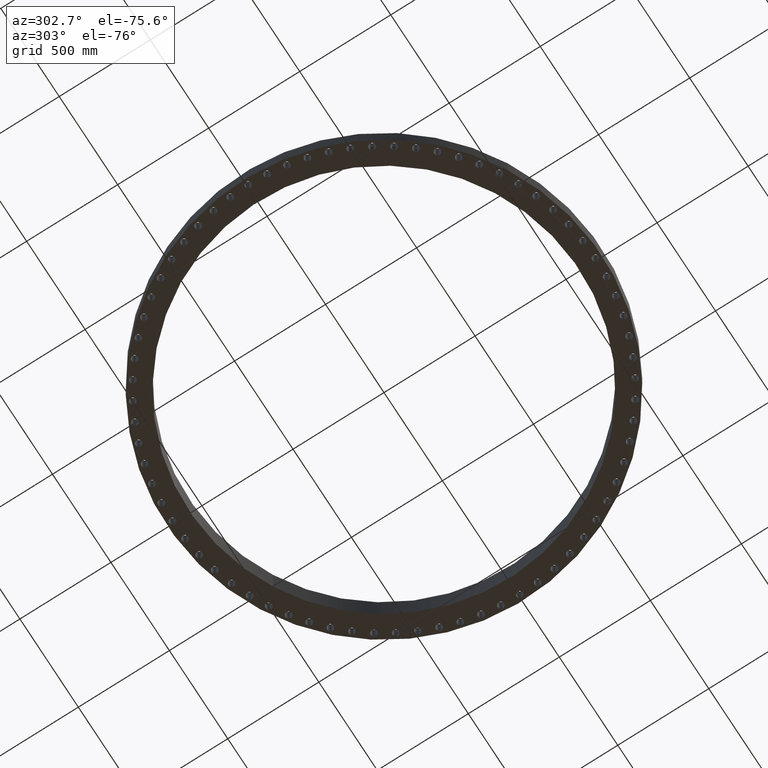
[diagram: clean part render]
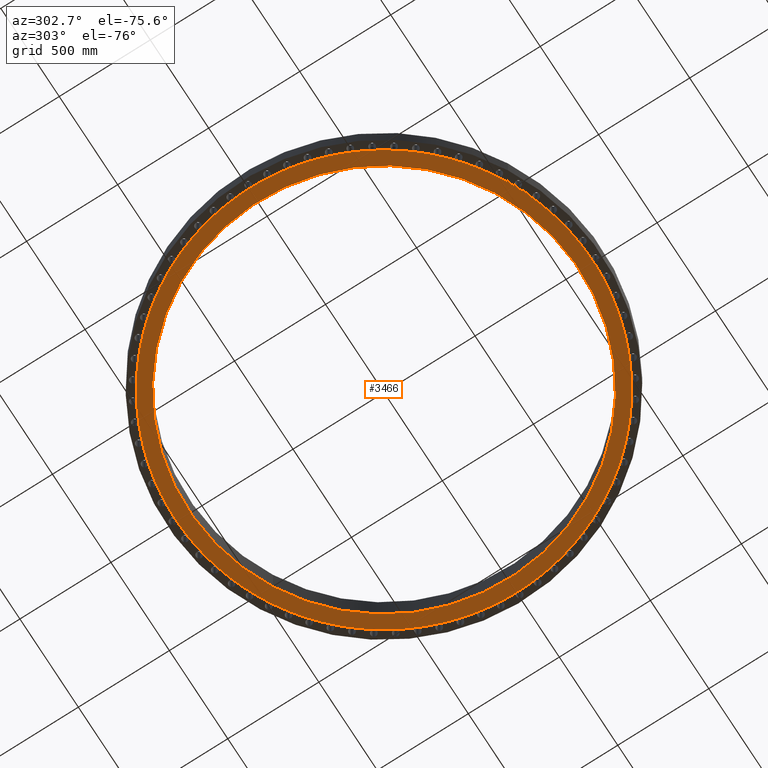
[diagram: same view with one face highlighted and labeled with its STEP entity id]
A machine part, auxiliary view. The second image highlights one B-rep face of the part: STEP entity #3466.
In plain terms, the highlighted planar face has unit normal (0, 0, -1).
Its self-contained STEP definition (entity closure, byte-faithful):
#91=AXIS2_PLACEMENT_3D('Circle Axis2P3D',#89,#90,$) ;
#366=AXIS2_PLACEMENT_3D('Circle Axis2P3D',#364,#365,$) ;
#385=AXIS2_PLACEMENT_3D('Circle Axis2P3D',#383,#384,$) ;
#402=AXIS2_PLACEMENT_3D('Circle Axis2P3D',#400,#401,$) ;
#444=AXIS2_PLACEMENT_3D('Circle Axis2P3D',#442,#443,$) ;
#472=AXIS2_PLACEMENT_3D('Circle Axis2P3D',#470,#471,$) ;
#514=AXIS2_PLACEMENT_3D('Circle Axis2P3D',#512,#513,$) ;
#533=AXIS2_PLACEMENT_3D('Circle Axis2P3D',#531,#532,$) ;
#568=AXIS2_PLACEMENT_3D('Circle Axis2P3D',#566,#567,$) ;
#612=AXIS2_PLACEMENT_3D('Circle Axis2P3D',#610,#611,$) ;
#647=AXIS2_PLACEMENT_3D('Circle Axis2P3D',#645,#646,$) ;
#682=AXIS2_PLACEMENT_3D('Circle Axis2P3D',#680,#681,$) ;
#724=AXIS2_PLACEMENT_3D('Circle Axis2P3D',#722,#723,$) ;
#752=AXIS2_PLACEMENT_3D('Circle Axis2P3D',#750,#751,$) ;
#787=AXIS2_PLACEMENT_3D('Circle Axis2P3D',#785,#786,$) ;
#813=AXIS2_PLACEMENT_3D('Circle Axis2P3D',#811,#812,$) ;
#848=AXIS2_PLACEMENT_3D('Circle Axis2P3D',#846,#847,$) ;
#890=AXIS2_PLACEMENT_3D('Circle Axis2P3D',#888,#889,$) ;
#918=AXIS2_PLACEMENT_3D('Circle Axis2P3D',#916,#917,$) ;
#960=AXIS2_PLACEMENT_3D('Circle Axis2P3D',#958,#959,$) ;
#979=AXIS2_PLACEMENT_3D('Circle Axis2P3D',#977,#978,$) ;
#1014=AXIS2_PLACEMENT_3D('Circle Axis2P3D',#1012,#1013,$) ;
#1049=AXIS2_PLACEMENT_3D('Circle Axis2P3D',#1047,#1048,$) ;
#1084=AXIS2_PLACEMENT_3D('Circle Axis2P3D',#1082,#1083,$) ;
#1119=AXIS2_PLACEMENT_3D('Circle Axis2P3D',#1117,#1118,$) ;
#1154=AXIS2_PLACEMENT_3D('Circle Axis2P3D',#1152,#1153,$) ;
#1189=AXIS2_PLACEMENT_3D('Circle Axis2P3D',#1187,#1188,$) ;
#1224=AXIS2_PLACEMENT_3D('Circle Axis2P3D',#1222,#1223,$) ;
#1268=AXIS2_PLACEMENT_3D('Circle Axis2P3D',#1266,#1267,$) ;
#1303=AXIS2_PLACEMENT_3D('Circle Axis2P3D',#1301,#1302,$) ;
#1338=AXIS2_PLACEMENT_3D('Circle Axis2P3D',#1336,#1337,$) ;
#1373=AXIS2_PLACEMENT_3D('Circle Axis2P3D',#1371,#1372,$) ;
#1408=AXIS2_PLACEMENT_3D('Circle Axis2P3D',#1406,#1407,$) ;
#1443=AXIS2_PLACEMENT_3D('Circle Axis2P3D',#1441,#1442,$) ;
#1478=AXIS2_PLACEMENT_3D('Circle Axis2P3D',#1476,#1477,$) ;
#1513=AXIS2_PLACEMENT_3D('Circle Axis2P3D',#1511,#1512,$) ;
#1548=AXIS2_PLACEMENT_3D('Circle Axis2P3D',#1546,#1547,$) ;
#1583=AXIS2_PLACEMENT_3D('Circle Axis2P3D',#1581,#1582,$) ;
#1618=AXIS2_PLACEMENT_3D('Circle Axis2P3D',#1616,#1617,$) ;
#1653=AXIS2_PLACEMENT_3D('Circle Axis2P3D',#1651,#1652,$) ;
#1688=AXIS2_PLACEMENT_3D('Circle Axis2P3D',#1686,#1687,$) ;
#1730=AXIS2_PLACEMENT_3D('Circle Axis2P3D',#1728,#1729,$) ;
#1765=AXIS2_PLACEMENT_3D('Circle Axis2P3D',#1763,#1764,$) ;
#1784=AXIS2_PLACEMENT_3D('Circle Axis2P3D',#1782,#1783,$) ;
#1819=AXIS2_PLACEMENT_3D('Circle Axis2P3D',#1817,#1818,$) ;
#1863=AXIS2_PLACEMENT_3D('Circle Axis2P3D',#1861,#1862,$) ;
#1898=AXIS2_PLACEMENT_3D('Circle Axis2P3D',#1896,#1897,$) ;
#1933=AXIS2_PLACEMENT_3D('Circle Axis2P3D',#1931,#1932,$) ;
#1959=AXIS2_PLACEMENT_3D('Circle Axis2P3D',#1957,#1958,$) ;
#2010=AXIS2_PLACEMENT_3D('Circle Axis2P3D',#2008,#2009,$) ;
#2052=AXIS2_PLACEMENT_3D('Circle Axis2P3D',#2050,#2051,$) ;
#2080=AXIS2_PLACEMENT_3D('Circle Axis2P3D',#2078,#2079,$) ;
#2115=AXIS2_PLACEMENT_3D('Circle Axis2P3D',#2113,#2114,$) ;
#2150=AXIS2_PLACEMENT_3D('Circle Axis2P3D',#2148,#2149,$) ;
#2169=AXIS2_PLACEMENT_3D('Circle Axis2P3D',#2167,#2168,$) ;
#2218=AXIS2_PLACEMENT_3D('Circle Axis2P3D',#2216,#2217,$) ;
#2230=AXIS2_PLACEMENT_3D('Circle Axis2P3D',#2228,#2229,$) ;
#2281=AXIS2_PLACEMENT_3D('Circle Axis2P3D',#2279,#2280,$) ;
#2316=AXIS2_PLACEMENT_3D('Circle Axis2P3D',#2314,#2315,$) ;
#2351=AXIS2_PLACEMENT_3D('Circle Axis2P3D',#2349,#2350,$) ;
#2386=AXIS2_PLACEMENT_3D('Circle Axis2P3D',#2384,#2385,$) ;
#2421=AXIS2_PLACEMENT_3D('Circle Axis2P3D',#2419,#2420,$) ;
#2463=AXIS2_PLACEMENT_3D('Circle Axis2P3D',#2461,#2462,$) ;
#2498=AXIS2_PLACEMENT_3D('Circle Axis2P3D',#2496,#2497,$) ;
#2533=AXIS2_PLACEMENT_3D('Circle Axis2P3D',#2531,#2532,$) ;
#2568=AXIS2_PLACEMENT_3D('Circle Axis2P3D',#2566,#2567,$) ;
#2603=AXIS2_PLACEMENT_3D('Circle Axis2P3D',#2601,#2602,$) ;
#2638=AXIS2_PLACEMENT_3D('Circle Axis2P3D',#2636,#2637,$) ;
#2673=AXIS2_PLACEMENT_3D('Circle Axis2P3D',#2671,#2672,$) ;
#2708=AXIS2_PLACEMENT_3D('Circle Axis2P3D',#2706,#2707,$) ;
#2736=AXIS2_PLACEMENT_3D('Circle Axis2P3D',#2734,#2735,$) ;
#2771=AXIS2_PLACEMENT_3D('Circle Axis2P3D',#2769,#2770,$) ;
#2813=AXIS2_PLACEMENT_3D('Circle Axis2P3D',#2811,#2812,$) ;
#2848=AXIS2_PLACEMENT_3D('Circle Axis2P3D',#2846,#2847,$) ;
#2867=AXIS2_PLACEMENT_3D('Circle Axis2P3D',#2865,#2866,$) ;
#2902=AXIS2_PLACEMENT_3D('Circle Axis2P3D',#2900,#2901,$) ;
#2921=AXIS2_PLACEMENT_3D('Circle Axis2P3D',#2919,#2920,$) ;
#2957=AXIS2_PLACEMENT_3D('Plane Axis2P3D',#2954,#2955,#2956) ;
#2961=AXIS2_PLACEMENT_3D('Circle Axis2P3D',#2959,#2960,$) ;
#2966=AXIS2_PLACEMENT_3D('Circle Axis2P3D',#2964,#2965,$) ;
#2971=AXIS2_PLACEMENT_3D('Circle Axis2P3D',#2969,#2970,$) ;
#2976=AXIS2_PLACEMENT_3D('Circle Axis2P3D',#2974,#2975,$) ;
#2981=AXIS2_PLACEMENT_3D('Circle Axis2P3D',#2979,#2980,$) ;
#2986=AXIS2_PLACEMENT_3D('Circle Axis2P3D',#2984,#2985,$) ;
#2991=AXIS2_PLACEMENT_3D('Circle Axis2P3D',#2989,#2990,$) ;
#2996=AXIS2_PLACEMENT_3D('Circle Axis2P3D',#2994,#2995,$) ;
#3001=AXIS2_PLACEMENT_3D('Circle Axis2P3D',#2999,#3000,$) ;
#3006=AXIS2_PLACEMENT_3D('Circle Axis2P3D',#3004,#3005,$) ;
#3011=AXIS2_PLACEMENT_3D('Circle Axis2P3D',#3009,#3010,$) ;
#3016=AXIS2_PLACEMENT_3D('Circle Axis2P3D',#3014,#3015,$) ;
#3021=AXIS2_PLACEMENT_3D('Circle Axis2P3D',#3019,#3020,$) ;
#3026=AXIS2_PLACEMENT_3D('Circle Axis2P3D',#3024,#3025,$) ;
#3031=AXIS2_PLACEMENT_3D('Circle Axis2P3D',#3029,#3030,$) ;
#3036=AXIS2_PLACEMENT_3D('Circle Axis2P3D',#3034,#3035,$) ;
#3041=AXIS2_PLACEMENT_3D('Circle Axis2P3D',#3039,#3040,$) ;
#3046=AXIS2_PLACEMENT_3D('Circle Axis2P3D',#3044,#3045,$) ;
#3051=AXIS2_PLACEMENT_3D('Circle Axis2P3D',#3049,#3050,$) ;
#3056=AXIS2_PLACEMENT_3D('Circle Axis2P3D',#3054,#3055,$) ;
#3061=AXIS2_PLACEMENT_3D('Circle Axis2P3D',#3059,#3060,$) ;
#3066=AXIS2_PLACEMENT_3D('Circle Axis2P3D',#3064,#3065,$) ;
#3071=AXIS2_PLACEMENT_3D('Circle Axis2P3D',#3069,#3070,$) ;
#3076=AXIS2_PLACEMENT_3D('Circle Axis2P3D',#3074,#3075,$) ;
#3081=AXIS2_PLACEMENT_3D('Circle Axis2P3D',#3079,#3080,$) ;
#3086=AXIS2_PLACEMENT_3D('Circle Axis2P3D',#3084,#3085,$) ;
#3091=AXIS2_PLACEMENT_3D('Circle Axis2P3D',#3089,#3090,$) ;
#3096=AXIS2_PLACEMENT_3D('Circle Axis2P3D',#3094,#3095,$) ;
#3101=AXIS2_PLACEMENT_3D('Circle Axis2P3D',#3099,#3100,$) ;
#3106=AXIS2_PLACEMENT_3D('Circle Axis2P3D',#3104,#3105,$) ;
#3111=AXIS2_PLACEMENT_3D('Circle Axis2P3D',#3109,#3110,$) ;
#3116=AXIS2_PLACEMENT_3D('Circle Axis2P3D',#3114,#3115,$) ;
#3121=AXIS2_PLACEMENT_3D('Circle Axis2P3D',#3119,#3120,$) ;
#3126=AXIS2_PLACEMENT_3D('Circle Axis2P3D',#3124,#3125,$) ;
#3131=AXIS2_PLACEMENT_3D('Circle Axis2P3D',#3129,#3130,$) ;
#3136=AXIS2_PLACEMENT_3D('Circle Axis2P3D',#3134,#3135,$) ;
#3141=AXIS2_PLACEMENT_3D('Circle Axis2P3D',#3139,#3140,$) ;
#3146=AXIS2_PLACEMENT_3D('Circle Axis2P3D',#3144,#3145,$) ;
#3151=AXIS2_PLACEMENT_3D('Circle Axis2P3D',#3149,#3150,$) ;
#3156=AXIS2_PLACEMENT_3D('Circle Axis2P3D',#3154,#3155,$) ;
#3161=AXIS2_PLACEMENT_3D('Circle Axis2P3D',#3159,#3160,$) ;
#3166=AXIS2_PLACEMENT_3D('Circle Axis2P3D',#3164,#3165,$) ;
#3171=AXIS2_PLACEMENT_3D('Circle Axis2P3D',#3169,#3170,$) ;
#3176=AXIS2_PLACEMENT_3D('Circle Axis2P3D',#3174,#3175,$) ;
#3181=AXIS2_PLACEMENT_3D('Circle Axis2P3D',#3179,#3180,$) ;
#3186=AXIS2_PLACEMENT_3D('Circle Axis2P3D',#3184,#3185,$) ;
#3191=AXIS2_PLACEMENT_3D('Circle Axis2P3D',#3189,#3190,$) ;
#3196=AXIS2_PLACEMENT_3D('Circle Axis2P3D',#3194,#3195,$) ;
#3201=AXIS2_PLACEMENT_3D('Circle Axis2P3D',#3199,#3200,$) ;
#3206=AXIS2_PLACEMENT_3D('Circle Axis2P3D',#3204,#3205,$) ;
#3211=AXIS2_PLACEMENT_3D('Circle Axis2P3D',#3209,#3210,$) ;
#3216=AXIS2_PLACEMENT_3D('Circle Axis2P3D',#3214,#3215,$) ;
#3221=AXIS2_PLACEMENT_3D('Circle Axis2P3D',#3219,#3220,$) ;
#3226=AXIS2_PLACEMENT_3D('Circle Axis2P3D',#3224,#3225,$) ;
#3231=AXIS2_PLACEMENT_3D('Circle Axis2P3D',#3229,#3230,$) ;
#3236=AXIS2_PLACEMENT_3D('Circle Axis2P3D',#3234,#3235,$) ;
#3241=AXIS2_PLACEMENT_3D('Circle Axis2P3D',#3239,#3240,$) ;
#3246=AXIS2_PLACEMENT_3D('Circle Axis2P3D',#3244,#3245,$) ;
#3251=AXIS2_PLACEMENT_3D('Circle Axis2P3D',#3249,#3250,$) ;
#3256=AXIS2_PLACEMENT_3D('Circle Axis2P3D',#3254,#3255,$) ;
#3261=AXIS2_PLACEMENT_3D('Circle Axis2P3D',#3259,#3260,$) ;
#3266=AXIS2_PLACEMENT_3D('Circle Axis2P3D',#3264,#3265,$) ;
#3271=AXIS2_PLACEMENT_3D('Circle Axis2P3D',#3269,#3270,$) ;
#3276=AXIS2_PLACEMENT_3D('Circle Axis2P3D',#3274,#3275,$) ;
#3281=AXIS2_PLACEMENT_3D('Circle Axis2P3D',#3279,#3280,$) ;
#3286=AXIS2_PLACEMENT_3D('Circle Axis2P3D',#3284,#3285,$) ;
#3291=AXIS2_PLACEMENT_3D('Circle Axis2P3D',#3289,#3290,$) ;
#3296=AXIS2_PLACEMENT_3D('Circle Axis2P3D',#3294,#3295,$) ;
#3301=AXIS2_PLACEMENT_3D('Circle Axis2P3D',#3299,#3300,$) ;
#3306=AXIS2_PLACEMENT_3D('Circle Axis2P3D',#3304,#3305,$) ;
#3311=AXIS2_PLACEMENT_3D('Circle Axis2P3D',#3309,#3310,$) ;
#86=CARTESIAN_POINT('Vertex',(45.0649248636,-0.0822925099633,-0.0625000000002)) ;
#89=CARTESIAN_POINT('Axis2P3D Location',(45.7500000002,0.,-0.0625000000002)) ;
#93=CARTESIAN_POINT('Vertex',(45.0649248636,0.0822925099633,-0.0625000000002)) ;
#361=CARTESIAN_POINT('Vertex',(-20.1958008138,-36.9681654198,-0.0625000000003)) ;
#364=CARTESIAN_POINT('Axis2P3D Location',(0.,0.,-0.0625000000003)) ;
#368=CARTESIAN_POINT('Vertex',(20.1958008138,36.9681654198,-0.0625000000003)) ;
#383=CARTESIAN_POINT('Axis2P3D Location',(0.,0.,-0.0625000000003)) ;
#400=CARTESIAN_POINT('Axis2P3D Location',(0.,0.,-0.0625000000002)) ;
#404=CARTESIAN_POINT('Vertex',(44.3945773389,7.74439977743,-0.0625000000002)) ;
#406=CARTESIAN_POINT('Vertex',(44.8862669542,4.00964636047,-0.0625000000002)) ;
#442=CARTESIAN_POINT('Axis2P3D Location',(0.,0.,-0.0625000000002)) ;
#446=CARTESIAN_POINT('Vertex',(44.9006114838,3.84568763623,-0.0625000000002)) ;
#467=CARTESIAN_POINT('Vertex',(44.3659974502,7.90648438108,-0.0625000000002)) ;
#470=CARTESIAN_POINT('Axis2P3D Location',(0.,0.,-0.0625000000002)) ;
#474=CARTESIAN_POINT('Vertex',(43.5506736543,11.5841723601,-0.0625000000002)) ;
#509=CARTESIAN_POINT('Vertex',(43.5080759166,11.7431492815,-0.0625000000002)) ;
#512=CARTESIAN_POINT('Axis2P3D Location',(0.,0.,-0.0625000000002)) ;
#516=CARTESIAN_POINT('Vertex',(42.3753230466,15.3357823964,-0.0625000000002)) ;
#531=CARTESIAN_POINT('Axis2P3D Location',(0.,0.,-0.0625000000002)) ;
#535=CARTESIAN_POINT('Vertex',(40.8774706436,18.9706778687,-0.0625000000002)) ;
#537=CARTESIAN_POINT('Vertex',(42.3190316545,15.4904417252,-0.0625000000002)) ;
#566=CARTESIAN_POINT('Axis2P3D Location',(0.,0.,-0.0625000000002)) ;
#570=CARTESIAN_POINT('Vertex',(39.0685160065,22.4611950276,-0.0625000000002)) ;
#572=CARTESIAN_POINT('Vertex',(40.8079140086,19.1198425539,-0.0625000000002)) ;
#607=CARTESIAN_POINT('Vertex',(38.9862234965,22.603729836,-0.0625000000002)) ;
#610=CARTESIAN_POINT('Axis2P3D Location',(0.,0.,-0.0625000000002)) ;
#614=CARTESIAN_POINT('Vertex',(36.9622263723,25.7807689299,-0.0625000000002)) ;
#642=CARTESIAN_POINT('Vertex',(36.8678242831,25.9155890854,-0.0625000000002)) ;
#645=CARTESIAN_POINT('Axis2P3D Location',(0.,0.,-0.0625000000002)) ;
#649=CARTESIAN_POINT('Vertex',(34.5746318771,28.9041356138,-0.0625000000002)) ;
#677=CARTESIAN_POINT('Vertex',(34.4688386655,29.0302150537,-0.0625000000002)) ;
#680=CARTESIAN_POINT('Axis2P3D Location',(0.,0.,-0.0625000000002)) ;
#684=CARTESIAN_POINT('Vertex',(31.9239035565,31.8075243729,-0.0625000000002)) ;
#719=CARTESIAN_POINT('Vertex',(31.8075243729,31.9239035565,-0.0625000000002)) ;
#722=CARTESIAN_POINT('Axis2P3D Location',(0.,0.,-0.0625000000002)) ;
#726=CARTESIAN_POINT('Vertex',(29.0302150537,34.4688386655,-0.0625000000002)) ;
#747=CARTESIAN_POINT('Vertex',(28.9041356138,34.5746318771,-0.0625000000002)) ;
#750=CARTESIAN_POINT('Axis2P3D Location',(0.,0.,-0.0625000000002)) ;
#754=CARTESIAN_POINT('Vertex',(25.9155890854,36.8678242831,-0.0625000000002)) ;
#782=CARTESIAN_POINT('Vertex',(25.7807689299,36.9622263723,-0.0625000000002)) ;
#785=CARTESIAN_POINT('Axis2P3D Location',(0.,0.,-0.0625000000002)) ;
#789=CARTESIAN_POINT('Vertex',(22.603729836,38.9862234965,-0.0625000000002)) ;
#811=CARTESIAN_POINT('Axis2P3D Location',(0.,0.,-0.0625000000002)) ;
#815=CARTESIAN_POINT('Vertex',(21.6053118973,39.5482581517,-0.0625000000002)) ;
#817=CARTESIAN_POINT('Vertex',(22.4611950276,39.0685160065,-0.0625000000002)) ;
#846=CARTESIAN_POINT('Axis2P3D Location',(0.,0.,-0.0625000000002)) ;
#850=CARTESIAN_POINT('Vertex',(15.4904417252,42.3190316545,-0.0625000000002)) ;
#852=CARTESIAN_POINT('Vertex',(18.9706778687,40.8774706436,-0.0625000000002)) ;
#888=CARTESIAN_POINT('Axis2P3D Location',(0.,0.,-0.0625000000002)) ;
#892=CARTESIAN_POINT('Vertex',(19.1198425539,40.8079140086,-0.0625000000002)) ;
#913=CARTESIAN_POINT('Vertex',(15.3357823964,42.3753230466,-0.0625000000002)) ;
#916=CARTESIAN_POINT('Axis2P3D Location',(0.,0.,-0.0625000000002)) ;
#920=CARTESIAN_POINT('Vertex',(11.7431492815,43.5080759166,-0.0625000000002)) ;
#955=CARTESIAN_POINT('Vertex',(11.5841723601,43.5506736543,-0.0625000000002)) ;
#958=CARTESIAN_POINT('Axis2P3D Location',(0.,0.,-0.0625000000002)) ;
#962=CARTESIAN_POINT('Vertex',(7.90648438108,44.3659974502,-0.0625000000002)) ;
#977=CARTESIAN_POINT('Axis2P3D Location',(0.,0.,-0.0625000000002)) ;
#981=CARTESIAN_POINT('Vertex',(4.00964636047,44.8862669542,-0.0625000000002)) ;
#983=CARTESIAN_POINT('Vertex',(7.74439977743,44.3945773389,-0.0625000000002)) ;
#1012=CARTESIAN_POINT('Axis2P3D Location',(0.,0.,-0.0625000000002)) ;
#1016=CARTESIAN_POINT('Vertex',(0.0822925099633,45.0649248636,-0.0625000000002)) ;
#1018=CARTESIAN_POINT('Vertex',(3.84568763623,44.9006114838,-0.0625000000002)) ;
#1047=CARTESIAN_POINT('Axis2P3D Location',(0.,0.,-0.0625000000002)) ;
#1051=CARTESIAN_POINT('Vertex',(-3.84568763623,44.9006114838,-0.0625000000002)) ;
#1053=CARTESIAN_POINT('Vertex',(-0.0822925099634,45.0649248636,-0.0625000000002)) ;
#1082=CARTESIAN_POINT('Axis2P3D Location',(0.,0.,-0.0625000000002)) ;
#1086=CARTESIAN_POINT('Vertex',(-7.74439977743,44.3945773389,-0.0625000000002)) ;
#1088=CARTESIAN_POINT('Vertex',(-4.00964636047,44.8862669542,-0.0625000000002)) ;
#1117=CARTESIAN_POINT('Axis2P3D Location',(0.,0.,-0.0625000000002)) ;
#1121=CARTESIAN_POINT('Vertex',(-11.5841723601,43.5506736543,-0.0625000000002)) ;
#1123=CARTESIAN_POINT('Vertex',(-7.90648438108,44.3659974502,-0.0625000000002)) ;
#1152=CARTESIAN_POINT('Axis2P3D Location',(0.,0.,-0.0625000000002)) ;
#1156=CARTESIAN_POINT('Vertex',(-15.3357823964,42.3753230466,-0.0625000000002)) ;
#1158=CARTESIAN_POINT('Vertex',(-11.7431492815,43.5080759166,-0.0625000000002)) ;
#1187=CARTESIAN_POINT('Axis2P3D Location',(0.,0.,-0.0625000000002)) ;
#1191=CARTESIAN_POINT('Vertex',(-18.9706778687,40.8774706436,-0.0625000000002)) ;
#1193=CARTESIAN_POINT('Vertex',(-15.4904417252,42.3190316545,-0.0625000000002)) ;
#1222=CARTESIAN_POINT('Axis2P3D Location',(0.,0.,-0.0625000000002)) ;
#1226=CARTESIAN_POINT('Vertex',(-22.4611950276,39.0685160065,-0.0625000000002)) ;
#1228=CARTESIAN_POINT('Vertex',(-19.1198425539,40.8079140086,-0.0625000000002)) ;
#1263=CARTESIAN_POINT('Vertex',(-22.603729836,38.9862234965,-0.0625000000002)) ;
#1266=CARTESIAN_POINT('Axis2P3D Location',(0.,0.,-0.0625000000002)) ;
#1270=CARTESIAN_POINT('Vertex',(-25.7807689299,36.9622263723,-0.0625000000002)) ;
#1298=CARTESIAN_POINT('Vertex',(-25.9155890854,36.8678242831,-0.0625000000002)) ;
#1301=CARTESIAN_POINT('Axis2P3D Location',(0.,0.,-0.0625000000002)) ;
#1305=CARTESIAN_POINT('Vertex',(-28.9041356138,34.5746318771,-0.0625000000002)) ;
#1333=CARTESIAN_POINT('Vertex',(-29.0302150537,34.4688386655,-0.0625000000002)) ;
#1336=CARTESIAN_POINT('Axis2P3D Location',(0.,0.,-0.0625000000002)) ;
#1340=CARTESIAN_POINT('Vertex',(-31.8075243729,31.9239035565,-0.0625000000002)) ;
#1368=CARTESIAN_POINT('Vertex',(-31.9239035565,31.8075243729,-0.0625000000002)) ;
#1371=CARTESIAN_POINT('Axis2P3D Location',(0.,0.,-0.0625000000002)) ;
#1375=CARTESIAN_POINT('Vertex',(-34.4688386655,29.0302150537,-0.0625000000002)) ;
#1403=CARTESIAN_POINT('Vertex',(-34.5746318771,28.9041356138,-0.0625000000002)) ;
#1406=CARTESIAN_POINT('Axis2P3D Location',(0.,0.,-0.0625000000002)) ;
#1410=CARTESIAN_POINT('Vertex',(-36.8678242831,25.9155890854,-0.0625000000002)) ;
#1438=CARTESIAN_POINT('Vertex',(-36.9622263723,25.7807689299,-0.0625000000002)) ;
#1441=CARTESIAN_POINT('Axis2P3D Location',(0.,0.,-0.0625000000002)) ;
#1445=CARTESIAN_POINT('Vertex',(-38.9862234965,22.603729836,-0.0625000000002)) ;
#1473=CARTESIAN_POINT('Vertex',(-39.0685160065,22.4611950276,-0.0625000000002)) ;
#1476=CARTESIAN_POINT('Axis2P3D Location',(0.,0.,-0.0625000000002)) ;
#1480=CARTESIAN_POINT('Vertex',(-40.8079140086,19.1198425539,-0.0625000000002)) ;
#1508=CARTESIAN_POINT('Vertex',(-40.8774706436,18.9706778687,-0.0625000000002)) ;
#1511=CARTESIAN_POINT('Axis2P3D Location',(0.,0.,-0.0625000000002)) ;
#1515=CARTESIAN_POINT('Vertex',(-42.3190316545,15.4904417252,-0.0625000000002)) ;
#1543=CARTESIAN_POINT('Vertex',(-42.3753230466,15.3357823964,-0.0625000000002)) ;
#1546=CARTESIAN_POINT('Axis2P3D Location',(0.,0.,-0.0625000000002)) ;
#1550=CARTESIAN_POINT('Vertex',(-43.5080759166,11.7431492815,-0.0625000000002)) ;
#1578=CARTESIAN_POINT('Vertex',(-43.5506736543,11.5841723601,-0.0625000000002)) ;
#1581=CARTESIAN_POINT('Axis2P3D Location',(0.,0.,-0.0625000000002)) ;
#1585=CARTESIAN_POINT('Vertex',(-44.3659974502,7.90648438108,-0.0625000000002)) ;
#1613=CARTESIAN_POINT('Vertex',(-44.3945773389,7.74439977743,-0.0625000000002)) ;
#1616=CARTESIAN_POINT('Axis2P3D Location',(0.,0.,-0.0625000000002)) ;
#1620=CARTESIAN_POINT('Vertex',(-44.8862669542,4.00964636047,-0.0625000000002)) ;
#1648=CARTESIAN_POINT('Vertex',(-44.9006114838,3.84568763623,-0.0625000000002)) ;
#1651=CARTESIAN_POINT('Axis2P3D Location',(0.,0.,-0.0625000000002)) ;
#1655=CARTESIAN_POINT('Vertex',(-45.0649248636,0.0822925099634,-0.0625000000002)) ;
#1683=CARTESIAN_POINT('Vertex',(-45.0649248636,-0.0822925099634,-0.0625000000002)) ;
#1686=CARTESIAN_POINT('Axis2P3D Location',(0.,0.,-0.0625000000002)) ;
#1690=CARTESIAN_POINT('Vertex',(-44.9006114838,-3.84568763623,-0.0625000000002)) ;
#1725=CARTESIAN_POINT('Vertex',(-44.8862669542,-4.00964636047,-0.0625000000002)) ;
#1728=CARTESIAN_POINT('Axis2P3D Location',(0.,0.,-0.0625000000002)) ;
#1732=CARTESIAN_POINT('Vertex',(-44.3945773389,-7.74439977743,-0.0625000000002)) ;
#1760=CARTESIAN_POINT('Vertex',(-40.8079140086,-19.1198425539,-0.0625000000002)) ;
#1763=CARTESIAN_POINT('Axis2P3D Location',(0.,0.,-0.0625000000002)) ;
#1767=CARTESIAN_POINT('Vertex',(-39.0685160065,-22.4611950276,-0.0625000000002)) ;
#1782=CARTESIAN_POINT('Axis2P3D Location',(0.,0.,-0.0625000000002)) ;
#1786=CARTESIAN_POINT('Vertex',(-36.9622263723,-25.7807689299,-0.0625000000002)) ;
#1788=CARTESIAN_POINT('Vertex',(-38.9862234965,-22.603729836,-0.0625000000002)) ;
#1817=CARTESIAN_POINT('Axis2P3D Location',(0.,0.,-0.0625000000002)) ;
#1821=CARTESIAN_POINT('Vertex',(-34.5746318771,-28.9041356138,-0.0625000000002)) ;
#1823=CARTESIAN_POINT('Vertex',(-36.8678242831,-25.9155890854,-0.0625000000002)) ;
#1858=CARTESIAN_POINT('Vertex',(-34.4688386655,-29.0302150537,-0.0625000000002)) ;
#1861=CARTESIAN_POINT('Axis2P3D Location',(0.,0.,-0.0625000000002)) ;
#1865=CARTESIAN_POINT('Vertex',(-31.9239035565,-31.8075243729,-0.0625000000002)) ;
#1893=CARTESIAN_POINT('Vertex',(-31.8075243729,-31.9239035565,-0.0625000000002)) ;
#1896=CARTESIAN_POINT('Axis2P3D Location',(0.,0.,-0.0625000000002)) ;
#1900=CARTESIAN_POINT('Vertex',(-29.0302150537,-34.4688386655,-0.0625000000002)) ;
#1928=CARTESIAN_POINT('Vertex',(-25.7807689299,-36.9622263723,-0.0625000000002)) ;
#1931=CARTESIAN_POINT('Axis2P3D Location',(0.,0.,-0.0625000000002)) ;
#1935=CARTESIAN_POINT('Vertex',(-22.603729836,-38.9862234965,-0.0625000000002)) ;
#1957=CARTESIAN_POINT('Axis2P3D Location',(0.,0.,-0.0625000000002)) ;
#1961=CARTESIAN_POINT('Vertex',(-21.6053118973,-39.5482581517,-0.0625000000002)) ;
#1963=CARTESIAN_POINT('Vertex',(-22.4611950276,-39.0685160065,-0.0625000000002)) ;
#2005=CARTESIAN_POINT('Vertex',(-28.9041356138,-34.5746318771,-0.0625000000002)) ;
#2008=CARTESIAN_POINT('Axis2P3D Location',(0.,0.,-0.0625000000002)) ;
#2012=CARTESIAN_POINT('Vertex',(-25.9155890854,-36.8678242831,-0.0625000000002)) ;
#2033=CARTESIAN_POINT('Vertex',(-42.3753230466,-15.3357823964,-0.0625000000002)) ;
#2047=CARTESIAN_POINT('Vertex',(-43.5080759166,-11.7431492815,-0.0625000000002)) ;
#2050=CARTESIAN_POINT('Axis2P3D Location',(0.,0.,-0.0625000000002)) ;
#2075=CARTESIAN_POINT('Vertex',(-44.3659974502,-7.90648438108,-0.0625000000002)) ;
#2078=CARTESIAN_POINT('Axis2P3D Location',(0.,0.,-0.0625000000002)) ;
#2082=CARTESIAN_POINT('Vertex',(-43.5506736543,-11.5841723601,-0.0625000000002)) ;
#2110=CARTESIAN_POINT('Vertex',(-42.3190316545,-15.4904417252,-0.0625000000002)) ;
#2113=CARTESIAN_POINT('Axis2P3D Location',(0.,0.,-0.0625000000002)) ;
#2117=CARTESIAN_POINT('Vertex',(-40.8774706436,-18.9706778687,-0.0625000000002)) ;
#2145=CARTESIAN_POINT('Vertex',(44.3945773389,-7.74439977743,-0.0625000000002)) ;
#2148=CARTESIAN_POINT('Axis2P3D Location',(0.,0.,-0.0625000000002)) ;
#2152=CARTESIAN_POINT('Vertex',(44.8862669542,-4.00964636047,-0.0625000000002)) ;
#2167=CARTESIAN_POINT('Axis2P3D Location',(0.,0.,-0.0625000000002)) ;
#2171=CARTESIAN_POINT('Vertex',(44.9006114838,-3.84568763623,-0.0625000000002)) ;
#2199=CARTESIAN_POINT('Vertex',(44.3659974502,-7.90648438108,-0.0625000000002)) ;
#2213=CARTESIAN_POINT('Vertex',(43.5506736543,-11.5841723601,-0.0625000000002)) ;
#2216=CARTESIAN_POINT('Axis2P3D Location',(0.,0.,-0.0625000000002)) ;
#2228=CARTESIAN_POINT('Axis2P3D Location',(0.,0.,-0.0625000000002)) ;
#2232=CARTESIAN_POINT('Vertex',(43.5080759166,-11.7431492815,-0.0625000000002)) ;
#2234=CARTESIAN_POINT('Vertex',(42.3753230466,-15.3357823964,-0.0625000000002)) ;
#2276=CARTESIAN_POINT('Vertex',(40.8774706436,-18.9706778687,-0.0625000000002)) ;
#2279=CARTESIAN_POINT('Axis2P3D Location',(0.,0.,-0.0625000000002)) ;
#2283=CARTESIAN_POINT('Vertex',(42.3190316545,-15.4904417252,-0.0625000000002)) ;
#2311=CARTESIAN_POINT('Vertex',(39.0685160065,-22.4611950276,-0.0625000000002)) ;
#2314=CARTESIAN_POINT('Axis2P3D Location',(0.,0.,-0.0625000000002)) ;
#2318=CARTESIAN_POINT('Vertex',(40.8079140086,-19.1198425539,-0.0625000000002)) ;
#2346=CARTESIAN_POINT('Vertex',(36.9622263723,-25.7807689299,-0.0625000000002)) ;
#2349=CARTESIAN_POINT('Axis2P3D Location',(0.,0.,-0.0625000000002)) ;
#2353=CARTESIAN_POINT('Vertex',(38.9862234965,-22.603729836,-0.0625000000002)) ;
#2381=CARTESIAN_POINT('Vertex',(34.5746318771,-28.9041356138,-0.0625000000002)) ;
#2384=CARTESIAN_POINT('Axis2P3D Location',(0.,0.,-0.0625000000002)) ;
#2388=CARTESIAN_POINT('Vertex',(36.8678242831,-25.9155890854,-0.0625000000002)) ;
#2416=CARTESIAN_POINT('Vertex',(31.9239035565,-31.8075243729,-0.0625000000002)) ;
#2419=CARTESIAN_POINT('Axis2P3D Location',(0.,0.,-0.0625000000002)) ;
#2423=CARTESIAN_POINT('Vertex',(34.4688386655,-29.0302150537,-0.0625000000002)) ;
#2444=CARTESIAN_POINT('Vertex',(31.8075243729,-31.9239035565,-0.0625000000002)) ;
#2458=CARTESIAN_POINT('Vertex',(29.0302150537,-34.4688386655,-0.0625000000002)) ;
#2461=CARTESIAN_POINT('Axis2P3D Location',(0.,0.,-0.0625000000002)) ;
#2479=CARTESIAN_POINT('Vertex',(28.9041356138,-34.5746318771,-0.0625000000002)) ;
#2493=CARTESIAN_POINT('Vertex',(25.9155890854,-36.8678242831,-0.0625000000002)) ;
#2496=CARTESIAN_POINT('Axis2P3D Location',(0.,0.,-0.0625000000002)) ;
#2514=CARTESIAN_POINT('Vertex',(25.7807689299,-36.9622263723,-0.0625000000002)) ;
#2528=CARTESIAN_POINT('Vertex',(22.603729836,-38.9862234965,-0.0625000000002)) ;
#2531=CARTESIAN_POINT('Axis2P3D Location',(0.,0.,-0.0625000000002)) ;
#2549=CARTESIAN_POINT('Vertex',(22.4611950276,-39.0685160065,-0.0625000000002)) ;
#2563=CARTESIAN_POINT('Vertex',(19.1198425539,-40.8079140086,-0.0625000000002)) ;
#2566=CARTESIAN_POINT('Axis2P3D Location',(0.,0.,-0.0625000000002)) ;
#2584=CARTESIAN_POINT('Vertex',(18.9706778687,-40.8774706436,-0.0625000000002)) ;
#2598=CARTESIAN_POINT('Vertex',(15.4904417252,-42.3190316545,-0.0625000000002)) ;
#2601=CARTESIAN_POINT('Axis2P3D Location',(0.,0.,-0.0625000000002)) ;
#2619=CARTESIAN_POINT('Vertex',(15.3357823964,-42.3753230466,-0.0625000000002)) ;
#2633=CARTESIAN_POINT('Vertex',(11.7431492815,-43.5080759166,-0.0625000000002)) ;
#2636=CARTESIAN_POINT('Axis2P3D Location',(0.,0.,-0.0625000000002)) ;
#2654=CARTESIAN_POINT('Vertex',(11.5841723601,-43.5506736543,-0.0625000000002)) ;
#2668=CARTESIAN_POINT('Vertex',(7.90648438108,-44.3659974502,-0.0625000000002)) ;
#2671=CARTESIAN_POINT('Axis2P3D Location',(0.,0.,-0.0625000000002)) ;
#2689=CARTESIAN_POINT('Vertex',(7.74439977743,-44.3945773389,-0.0625000000002)) ;
#2703=CARTESIAN_POINT('Vertex',(4.00964636047,-44.8862669542,-0.0625000000002)) ;
#2706=CARTESIAN_POINT('Axis2P3D Location',(0.,0.,-0.0625000000002)) ;
#2731=CARTESIAN_POINT('Vertex',(-3.84568763623,-44.9006114838,-0.0625000000002)) ;
#2734=CARTESIAN_POINT('Axis2P3D Location',(0.,0.,-0.0625000000002)) ;
#2738=CARTESIAN_POINT('Vertex',(-0.0822925099633,-45.0649248636,-0.0625000000002)) ;
#2766=CARTESIAN_POINT('Vertex',(-7.74439977743,-44.3945773389,-0.0625000000002)) ;
#2769=CARTESIAN_POINT('Axis2P3D Location',(0.,0.,-0.0625000000002)) ;
#2773=CARTESIAN_POINT('Vertex',(-4.00964636047,-44.8862669542,-0.0625000000002)) ;
#2794=CARTESIAN_POINT('Vertex',(-7.90648438108,-44.3659974502,-0.0625000000002)) ;
#2808=CARTESIAN_POINT('Vertex',(-11.5841723601,-43.5506736543,-0.0625000000002)) ;
#2811=CARTESIAN_POINT('Axis2P3D Location',(0.,0.,-0.0625000000002)) ;
#2829=CARTESIAN_POINT('Vertex',(-11.7431492815,-43.5080759166,-0.0625000000002)) ;
#2843=CARTESIAN_POINT('Vertex',(-15.3357823964,-42.3753230466,-0.0625000000002)) ;
#2846=CARTESIAN_POINT('Axis2P3D Location',(0.,0.,-0.0625000000002)) ;
#2865=CARTESIAN_POINT('Axis2P3D Location',(0.,0.,-0.0625000000002)) ;
#2869=CARTESIAN_POINT('Vertex',(-19.1198425539,-40.8079140086,-0.0625000000002)) ;
#2897=CARTESIAN_POINT('Vertex',(-18.9706778687,-40.8774706436,-0.0625000000002)) ;
#2900=CARTESIAN_POINT('Axis2P3D Location',(0.,0.,-0.0625000000002)) ;
#2904=CARTESIAN_POINT('Vertex',(-15.4904417252,-42.3190316545,-0.0625000000002)) ;
#2919=CARTESIAN_POINT('Axis2P3D Location',(0.,0.,-0.0625000000002)) ;
#2923=CARTESIAN_POINT('Vertex',(3.84568763623,-44.9006114838,-0.0625000000002)) ;
#2925=CARTESIAN_POINT('Vertex',(0.0822925099633,-45.0649248636,-0.0625000000002)) ;
#2954=CARTESIAN_POINT('Axis2P3D Location',(0.,42.1250000002,-0.0625000000003)) ;
#2959=CARTESIAN_POINT('Axis2P3D Location',(45.0549547005,-7.94440412829,-0.0625000000003)) ;
#2964=CARTESIAN_POINT('Axis2P3D Location',(44.1911065529,-11.8409713135,-0.0625000000003)) ;
#2969=CARTESIAN_POINT('Axis2P3D Location',(42.9909374011,-15.6474215572,-0.0625000000003)) ;
#2974=CARTESIAN_POINT('Axis2P3D Location',(41.4635812571,-19.3347854747,-0.0625000000003)) ;
#2979=CARTESIAN_POINT('Axis2P3D Location',(39.6206622233,-22.8750000001,-0.0625000000003)) ;
#2984=CARTESIAN_POINT('Axis2P3D Location',(37.4762060264,-26.2411219632,-0.0625000000003)) ;
#2989=CARTESIAN_POINT('Axis2P3D Location',(35.0465332728,-29.4075331433,-0.0625000000003)) ;
#2994=CARTESIAN_POINT('Axis2P3D Location',(32.3501352394,-32.3501352394,-0.0625000000003)) ;
#2999=CARTESIAN_POINT('Axis2P3D Location',(29.4075331433,-35.0465332728,-0.0625000000003)) ;
#3004=CARTESIAN_POINT('Axis2P3D Location',(26.2411219632,-37.4762060264,-0.0625000000003)) ;
#3009=CARTESIAN_POINT('Axis2P3D Location',(22.8750000001,-39.6206622233,-0.0625000000003)) ;
#3014=CARTESIAN_POINT('Axis2P3D Location',(19.3347854747,-41.4635812571,-0.0625000000003)) ;
#3019=CARTESIAN_POINT('Axis2P3D Location',(15.6474215572,-42.9909374011,-0.0625000000003)) ;
#3024=CARTESIAN_POINT('Axis2P3D Location',(11.8409713135,-44.1911065529,-0.0625000000003)) ;
#3029=CARTESIAN_POINT('Axis2P3D Location',(7.94440412829,-45.0549547005,-0.0625000000003)) ;
#3034=CARTESIAN_POINT('Axis2P3D Location',(3.98737523072,-45.5759074379,-0.0625000000003)) ;
#3039=CARTESIAN_POINT('Axis2P3D Location',(2.32534901221E-015,-45.7500000002,-0.0625000000003)) ;
#3044=CARTESIAN_POINT('Axis2P3D Location',(-3.98737523072,-45.5759074379,-0.0625000000003)) ;
#3049=CARTESIAN_POINT('Axis2P3D Location',(-7.94440412829,-45.0549547005,-0.0625000000003)) ;
#3054=CARTESIAN_POINT('Axis2P3D Location',(-11.8409713135,-44.1911065529,-0.0625000000003)) ;
#3059=CARTESIAN_POINT('Axis2P3D Location',(-15.6474215572,-42.9909374011,-0.0625000000003)) ;
#3064=CARTESIAN_POINT('Axis2P3D Location',(-19.3347854747,-41.4635812571,-0.0625000000003)) ;
#3069=CARTESIAN_POINT('Axis2P3D Location',(-22.8750000001,-39.6206622233,-0.0625000000003)) ;
#3074=CARTESIAN_POINT('Axis2P3D Location',(-26.2411219632,-37.4762060264,-0.0625000000003)) ;
#3079=CARTESIAN_POINT('Axis2P3D Location',(-29.4075331433,-35.0465332728,-0.0625000000003)) ;
#3084=CARTESIAN_POINT('Axis2P3D Location',(-32.3501352394,-32.3501352394,-0.0625000000003)) ;
#3089=CARTESIAN_POINT('Axis2P3D Location',(-35.0465332728,-29.4075331433,-0.0625000000003)) ;
#3094=CARTESIAN_POINT('Axis2P3D Location',(-37.4762060264,-26.2411219632,-0.0625000000003)) ;
#3099=CARTESIAN_POINT('Axis2P3D Location',(-39.6206622233,-22.8750000001,-0.0625000000003)) ;
#3104=CARTESIAN_POINT('Axis2P3D Location',(-41.4635812571,-19.3347854747,-0.0625000000003)) ;
#3109=CARTESIAN_POINT('Axis2P3D Location',(-42.9909374011,-15.6474215572,-0.0625000000003)) ;
#3114=CARTESIAN_POINT('Axis2P3D Location',(-44.1911065529,-11.8409713135,-0.0625000000003)) ;
#3119=CARTESIAN_POINT('Axis2P3D Location',(-45.0549547005,-7.94440412829,-0.0625000000003)) ;
#3124=CARTESIAN_POINT('Axis2P3D Location',(-45.5759074379,-3.98737523072,-0.0625000000003)) ;
#3129=CARTESIAN_POINT('Axis2P3D Location',(-45.7500000002,0.,-0.0625000000003)) ;
#3134=CARTESIAN_POINT('Axis2P3D Location',(-45.5759074379,3.98737523072,-0.0625000000003)) ;
#3139=CARTESIAN_POINT('Axis2P3D Location',(-45.0549547005,7.94440412829,-0.0625000000003)) ;
#3144=CARTESIAN_POINT('Axis2P3D Location',(-44.1911065529,11.8409713135,-0.0625000000003)) ;
#3149=CARTESIAN_POINT('Axis2P3D Location',(-42.9909374011,15.6474215572,-0.0625000000003)) ;
#3154=CARTESIAN_POINT('Axis2P3D Location',(-41.4635812571,19.3347854747,-0.0625000000003)) ;
#3159=CARTESIAN_POINT('Axis2P3D Location',(-39.6206622233,22.8750000001,-0.0625000000003)) ;
#3164=CARTESIAN_POINT('Axis2P3D Location',(-37.4762060264,26.2411219632,-0.0625000000003)) ;
#3169=CARTESIAN_POINT('Axis2P3D Location',(-35.0465332728,29.4075331433,-0.0625000000003)) ;
#3174=CARTESIAN_POINT('Axis2P3D Location',(-32.3501352394,32.3501352394,-0.0625000000003)) ;
#3179=CARTESIAN_POINT('Axis2P3D Location',(-29.4075331433,35.0465332728,-0.0625000000003)) ;
#3184=CARTESIAN_POINT('Axis2P3D Location',(-26.2411219632,37.4762060264,-0.0625000000003)) ;
#3189=CARTESIAN_POINT('Axis2P3D Location',(-22.8750000001,39.6206622233,-0.0625000000003)) ;
#3194=CARTESIAN_POINT('Axis2P3D Location',(-19.3347854747,41.4635812571,-0.0625000000003)) ;
#3199=CARTESIAN_POINT('Axis2P3D Location',(-15.6474215572,42.9909374011,-0.0625000000003)) ;
#3204=CARTESIAN_POINT('Axis2P3D Location',(-11.8409713135,44.1911065529,-0.0625000000003)) ;
#3209=CARTESIAN_POINT('Axis2P3D Location',(-7.94440412829,45.0549547005,-0.0625000000003)) ;
#3214=CARTESIAN_POINT('Axis2P3D Location',(-3.98737523072,45.5759074379,-0.0625000000003)) ;
#3219=CARTESIAN_POINT('Axis2P3D Location',(-7.86772222175E-015,45.7500000002,-0.0625000000003)) ;
#3224=CARTESIAN_POINT('Axis2P3D Location',(3.98737523072,45.5759074379,-0.0625000000003)) ;
#3229=CARTESIAN_POINT('Axis2P3D Location',(7.94440412829,45.0549547005,-0.0625000000003)) ;
#3234=CARTESIAN_POINT('Axis2P3D Location',(11.8409713135,44.1911065529,-0.0625000000003)) ;
#3239=CARTESIAN_POINT('Axis2P3D Location',(15.6474215572,42.9909374011,-0.0625000000003)) ;
#3244=CARTESIAN_POINT('Axis2P3D Location',(19.3347854747,41.4635812571,-0.0625000000003)) ;
#3249=CARTESIAN_POINT('Axis2P3D Location',(22.8750000001,39.6206622233,-0.0625000000003)) ;
#3254=CARTESIAN_POINT('Axis2P3D Location',(26.2411219632,37.4762060264,-0.0625000000003)) ;
#3259=CARTESIAN_POINT('Axis2P3D Location',(29.4075331433,35.0465332728,-0.0625000000003)) ;
#3264=CARTESIAN_POINT('Axis2P3D Location',(32.3501352394,32.3501352394,-0.0625000000003)) ;
#3269=CARTESIAN_POINT('Axis2P3D Location',(35.0465332728,29.4075331433,-0.0625000000003)) ;
#3274=CARTESIAN_POINT('Axis2P3D Location',(37.4762060264,26.2411219632,-0.0625000000003)) ;
#3279=CARTESIAN_POINT('Axis2P3D Location',(39.6206622233,22.8750000001,-0.0625000000003)) ;
#3284=CARTESIAN_POINT('Axis2P3D Location',(41.4635812571,19.3347854747,-0.0625000000003)) ;
#3289=CARTESIAN_POINT('Axis2P3D Location',(42.9909374011,15.6474215572,-0.0625000000003)) ;
#3294=CARTESIAN_POINT('Axis2P3D Location',(44.1911065529,11.8409713135,-0.0625000000003)) ;
#3299=CARTESIAN_POINT('Axis2P3D Location',(45.0549547005,7.94440412829,-0.0625000000003)) ;
#3304=CARTESIAN_POINT('Axis2P3D Location',(45.5759074379,3.98737523072,-0.0625000000003)) ;
#3309=CARTESIAN_POINT('Axis2P3D Location',(45.5759074379,-3.98737523072,-0.0625000000003)) ;
#90=DIRECTION('Axis2P3D Direction',(0.,-0.,-0.0393700787402)) ;
#365=DIRECTION('Axis2P3D Direction',(0.,0.,-0.0393700787402)) ;
#384=DIRECTION('Axis2P3D Direction',(0.,0.,-0.0393700787402)) ;
#401=DIRECTION('Axis2P3D Direction',(0.,0.,-0.0393700787402)) ;
#443=DIRECTION('Axis2P3D Direction',(0.,0.,-0.0393700787402)) ;
#471=DIRECTION('Axis2P3D Direction',(0.,0.,-0.0393700787402)) ;
#513=DIRECTION('Axis2P3D Direction',(0.,0.,-0.0393700787402)) ;
#532=DIRECTION('Axis2P3D Direction',(0.,0.,-0.0393700787402)) ;
#567=DIRECTION('Axis2P3D Direction',(0.,0.,-0.0393700787402)) ;
#611=DIRECTION('Axis2P3D Direction',(0.,0.,-0.0393700787402)) ;
#646=DIRECTION('Axis2P3D Direction',(0.,0.,-0.0393700787402)) ;
#681=DIRECTION('Axis2P3D Direction',(0.,0.,-0.0393700787402)) ;
#723=DIRECTION('Axis2P3D Direction',(0.,0.,-0.0393700787402)) ;
#751=DIRECTION('Axis2P3D Direction',(0.,0.,-0.0393700787402)) ;
#786=DIRECTION('Axis2P3D Direction',(0.,0.,-0.0393700787402)) ;
#812=DIRECTION('Axis2P3D Direction',(0.,0.,-0.0393700787402)) ;
#847=DIRECTION('Axis2P3D Direction',(0.,0.,-0.0393700787402)) ;
#889=DIRECTION('Axis2P3D Direction',(0.,0.,-0.0393700787402)) ;
#917=DIRECTION('Axis2P3D Direction',(0.,0.,-0.0393700787402)) ;
#959=DIRECTION('Axis2P3D Direction',(0.,0.,-0.0393700787402)) ;
#978=DIRECTION('Axis2P3D Direction',(0.,0.,-0.0393700787402)) ;
#1013=DIRECTION('Axis2P3D Direction',(0.,0.,-0.0393700787402)) ;
#1048=DIRECTION('Axis2P3D Direction',(0.,0.,-0.0393700787402)) ;
#1083=DIRECTION('Axis2P3D Direction',(0.,0.,-0.0393700787402)) ;
#1118=DIRECTION('Axis2P3D Direction',(0.,0.,-0.0393700787402)) ;
#1153=DIRECTION('Axis2P3D Direction',(0.,0.,-0.0393700787402)) ;
#1188=DIRECTION('Axis2P3D Direction',(0.,0.,-0.0393700787402)) ;
#1223=DIRECTION('Axis2P3D Direction',(0.,0.,-0.0393700787402)) ;
#1267=DIRECTION('Axis2P3D Direction',(0.,0.,-0.0393700787402)) ;
#1302=DIRECTION('Axis2P3D Direction',(0.,0.,-0.0393700787402)) ;
#1337=DIRECTION('Axis2P3D Direction',(0.,0.,-0.0393700787402)) ;
#1372=DIRECTION('Axis2P3D Direction',(0.,0.,-0.0393700787402)) ;
#1407=DIRECTION('Axis2P3D Direction',(0.,0.,-0.0393700787402)) ;
#1442=DIRECTION('Axis2P3D Direction',(0.,0.,-0.0393700787402)) ;
#1477=DIRECTION('Axis2P3D Direction',(0.,0.,-0.0393700787402)) ;
#1512=DIRECTION('Axis2P3D Direction',(0.,0.,-0.0393700787402)) ;
#1547=DIRECTION('Axis2P3D Direction',(0.,0.,-0.0393700787402)) ;
#1582=DIRECTION('Axis2P3D Direction',(0.,0.,-0.0393700787402)) ;
#1617=DIRECTION('Axis2P3D Direction',(0.,0.,-0.0393700787402)) ;
#1652=DIRECTION('Axis2P3D Direction',(0.,0.,-0.0393700787402)) ;
#1687=DIRECTION('Axis2P3D Direction',(0.,0.,-0.0393700787402)) ;
#1729=DIRECTION('Axis2P3D Direction',(0.,0.,-0.0393700787402)) ;
#1764=DIRECTION('Axis2P3D Direction',(0.,0.,-0.0393700787402)) ;
#1783=DIRECTION('Axis2P3D Direction',(0.,0.,-0.0393700787402)) ;
#1818=DIRECTION('Axis2P3D Direction',(0.,0.,-0.0393700787402)) ;
#1862=DIRECTION('Axis2P3D Direction',(0.,0.,-0.0393700787402)) ;
#1897=DIRECTION('Axis2P3D Direction',(0.,0.,-0.0393700787402)) ;
#1932=DIRECTION('Axis2P3D Direction',(0.,0.,-0.0393700787402)) ;
#1958=DIRECTION('Axis2P3D Direction',(0.,0.,-0.0393700787402)) ;
#2009=DIRECTION('Axis2P3D Direction',(0.,0.,-0.0393700787402)) ;
#2051=DIRECTION('Axis2P3D Direction',(0.,0.,-0.0393700787402)) ;
#2079=DIRECTION('Axis2P3D Direction',(0.,0.,-0.0393700787402)) ;
#2114=DIRECTION('Axis2P3D Direction',(0.,0.,-0.0393700787402)) ;
#2149=DIRECTION('Axis2P3D Direction',(0.,0.,-0.0393700787402)) ;
#2168=DIRECTION('Axis2P3D Direction',(0.,0.,-0.0393700787402)) ;
#2217=DIRECTION('Axis2P3D Direction',(0.,0.,-0.0393700787402)) ;
#2229=DIRECTION('Axis2P3D Direction',(0.,0.,-0.0393700787402)) ;
#2280=DIRECTION('Axis2P3D Direction',(0.,0.,-0.0393700787402)) ;
#2315=DIRECTION('Axis2P3D Direction',(0.,0.,-0.0393700787402)) ;
#2350=DIRECTION('Axis2P3D Direction',(0.,0.,-0.0393700787402)) ;
#2385=DIRECTION('Axis2P3D Direction',(0.,0.,-0.0393700787402)) ;
#2420=DIRECTION('Axis2P3D Direction',(0.,0.,-0.0393700787402)) ;
#2462=DIRECTION('Axis2P3D Direction',(0.,0.,-0.0393700787402)) ;
#2497=DIRECTION('Axis2P3D Direction',(0.,0.,-0.0393700787402)) ;
#2532=DIRECTION('Axis2P3D Direction',(0.,0.,-0.0393700787402)) ;
#2567=DIRECTION('Axis2P3D Direction',(0.,0.,-0.0393700787402)) ;
#2602=DIRECTION('Axis2P3D Direction',(0.,0.,-0.0393700787402)) ;
#2637=DIRECTION('Axis2P3D Direction',(0.,0.,-0.0393700787402)) ;
#2672=DIRECTION('Axis2P3D Direction',(0.,0.,-0.0393700787402)) ;
#2707=DIRECTION('Axis2P3D Direction',(0.,0.,-0.0393700787402)) ;
#2735=DIRECTION('Axis2P3D Direction',(0.,0.,-0.0393700787402)) ;
#2770=DIRECTION('Axis2P3D Direction',(0.,0.,-0.0393700787402)) ;
#2812=DIRECTION('Axis2P3D Direction',(0.,0.,-0.0393700787402)) ;
#2847=DIRECTION('Axis2P3D Direction',(0.,0.,-0.0393700787402)) ;
#2866=DIRECTION('Axis2P3D Direction',(0.,0.,-0.0393700787402)) ;
#2901=DIRECTION('Axis2P3D Direction',(0.,0.,-0.0393700787402)) ;
#2920=DIRECTION('Axis2P3D Direction',(0.,0.,-0.0393700787402)) ;
#2955=DIRECTION('Axis2P3D Direction',(0.,0.,-0.0393700787402)) ;
#2956=DIRECTION('Axis2P3D XDirection',(0.0393700787402,0.,0.)) ;
#2960=DIRECTION('Axis2P3D Direction',(0.,0.,-0.0393700787402)) ;
#2965=DIRECTION('Axis2P3D Direction',(0.,0.,-0.0393700787402)) ;
#2970=DIRECTION('Axis2P3D Direction',(0.,0.,-0.0393700787402)) ;
#2975=DIRECTION('Axis2P3D Direction',(0.,0.,-0.0393700787402)) ;
#2980=DIRECTION('Axis2P3D Direction',(0.,0.,-0.0393700787402)) ;
#2985=DIRECTION('Axis2P3D Direction',(0.,0.,-0.0393700787402)) ;
#2990=DIRECTION('Axis2P3D Direction',(0.,0.,-0.0393700787402)) ;
#2995=DIRECTION('Axis2P3D Direction',(0.,0.,-0.0393700787402)) ;
#3000=DIRECTION('Axis2P3D Direction',(0.,0.,-0.0393700787402)) ;
#3005=DIRECTION('Axis2P3D Direction',(0.,0.,-0.0393700787402)) ;
#3010=DIRECTION('Axis2P3D Direction',(0.,0.,-0.0393700787402)) ;
#3015=DIRECTION('Axis2P3D Direction',(0.,0.,-0.0393700787402)) ;
#3020=DIRECTION('Axis2P3D Direction',(0.,0.,-0.0393700787402)) ;
#3025=DIRECTION('Axis2P3D Direction',(0.,0.,-0.0393700787402)) ;
#3030=DIRECTION('Axis2P3D Direction',(0.,0.,-0.0393700787402)) ;
#3035=DIRECTION('Axis2P3D Direction',(0.,0.,-0.0393700787402)) ;
#3040=DIRECTION('Axis2P3D Direction',(0.,0.,-0.0393700787402)) ;
#3045=DIRECTION('Axis2P3D Direction',(0.,0.,-0.0393700787402)) ;
#3050=DIRECTION('Axis2P3D Direction',(0.,0.,-0.0393700787402)) ;
#3055=DIRECTION('Axis2P3D Direction',(0.,0.,-0.0393700787402)) ;
#3060=DIRECTION('Axis2P3D Direction',(0.,0.,-0.0393700787402)) ;
#3065=DIRECTION('Axis2P3D Direction',(0.,0.,-0.0393700787402)) ;
#3070=DIRECTION('Axis2P3D Direction',(0.,0.,-0.0393700787402)) ;
#3075=DIRECTION('Axis2P3D Direction',(0.,0.,-0.0393700787402)) ;
#3080=DIRECTION('Axis2P3D Direction',(0.,0.,-0.0393700787402)) ;
#3085=DIRECTION('Axis2P3D Direction',(0.,0.,-0.0393700787402)) ;
#3090=DIRECTION('Axis2P3D Direction',(0.,0.,-0.0393700787402)) ;
#3095=DIRECTION('Axis2P3D Direction',(0.,0.,-0.0393700787402)) ;
#3100=DIRECTION('Axis2P3D Direction',(0.,0.,-0.0393700787402)) ;
#3105=DIRECTION('Axis2P3D Direction',(0.,0.,-0.0393700787402)) ;
#3110=DIRECTION('Axis2P3D Direction',(0.,0.,-0.0393700787402)) ;
#3115=DIRECTION('Axis2P3D Direction',(0.,0.,-0.0393700787402)) ;
#3120=DIRECTION('Axis2P3D Direction',(0.,0.,-0.0393700787402)) ;
#3125=DIRECTION('Axis2P3D Direction',(0.,0.,-0.0393700787402)) ;
#3130=DIRECTION('Axis2P3D Direction',(0.,0.,-0.0393700787402)) ;
#3135=DIRECTION('Axis2P3D Direction',(0.,0.,-0.0393700787402)) ;
#3140=DIRECTION('Axis2P3D Direction',(0.,0.,-0.0393700787402)) ;
#3145=DIRECTION('Axis2P3D Direction',(0.,0.,-0.0393700787402)) ;
#3150=DIRECTION('Axis2P3D Direction',(0.,0.,-0.0393700787402)) ;
#3155=DIRECTION('Axis2P3D Direction',(0.,0.,-0.0393700787402)) ;
#3160=DIRECTION('Axis2P3D Direction',(0.,0.,-0.0393700787402)) ;
#3165=DIRECTION('Axis2P3D Direction',(0.,0.,-0.0393700787402)) ;
#3170=DIRECTION('Axis2P3D Direction',(0.,0.,-0.0393700787402)) ;
#3175=DIRECTION('Axis2P3D Direction',(0.,0.,-0.0393700787402)) ;
#3180=DIRECTION('Axis2P3D Direction',(0.,0.,-0.0393700787402)) ;
#3185=DIRECTION('Axis2P3D Direction',(0.,0.,-0.0393700787402)) ;
#3190=DIRECTION('Axis2P3D Direction',(0.,0.,-0.0393700787402)) ;
#3195=DIRECTION('Axis2P3D Direction',(0.,0.,-0.0393700787402)) ;
#3200=DIRECTION('Axis2P3D Direction',(0.,0.,-0.0393700787402)) ;
#3205=DIRECTION('Axis2P3D Direction',(0.,0.,-0.0393700787402)) ;
#3210=DIRECTION('Axis2P3D Direction',(0.,0.,-0.0393700787402)) ;
#3215=DIRECTION('Axis2P3D Direction',(0.,0.,-0.0393700787402)) ;
#3220=DIRECTION('Axis2P3D Direction',(0.,0.,-0.0393700787402)) ;
#3225=DIRECTION('Axis2P3D Direction',(0.,0.,-0.0393700787402)) ;
#3230=DIRECTION('Axis2P3D Direction',(0.,0.,-0.0393700787402)) ;
#3235=DIRECTION('Axis2P3D Direction',(0.,0.,-0.0393700787402)) ;
#3240=DIRECTION('Axis2P3D Direction',(0.,0.,-0.0393700787402)) ;
#3245=DIRECTION('Axis2P3D Direction',(0.,0.,-0.0393700787402)) ;
#3250=DIRECTION('Axis2P3D Direction',(0.,0.,-0.0393700787402)) ;
#3255=DIRECTION('Axis2P3D Direction',(0.,0.,-0.0393700787402)) ;
#3260=DIRECTION('Axis2P3D Direction',(0.,0.,-0.0393700787402)) ;
#3265=DIRECTION('Axis2P3D Direction',(0.,0.,-0.0393700787402)) ;
#3270=DIRECTION('Axis2P3D Direction',(0.,0.,-0.0393700787402)) ;
#3275=DIRECTION('Axis2P3D Direction',(0.,0.,-0.0393700787402)) ;
#3280=DIRECTION('Axis2P3D Direction',(0.,0.,-0.0393700787402)) ;
#3285=DIRECTION('Axis2P3D Direction',(0.,0.,-0.0393700787402)) ;
#3290=DIRECTION('Axis2P3D Direction',(0.,0.,-0.0393700787402)) ;
#3295=DIRECTION('Axis2P3D Direction',(0.,0.,-0.0393700787402)) ;
#3300=DIRECTION('Axis2P3D Direction',(0.,0.,-0.0393700787402)) ;
#3305=DIRECTION('Axis2P3D Direction',(0.,0.,-0.0393700787402)) ;
#3310=DIRECTION('Axis2P3D Direction',(0.,0.,-0.0393700787402)) ;
#3315=ORIENTED_EDGE('',*,*,#2154,.T.) ;
#3316=ORIENTED_EDGE('',*,*,#2963,.F.) ;
#3317=ORIENTED_EDGE('',*,*,#2220,.T.) ;
#3318=ORIENTED_EDGE('',*,*,#2968,.F.) ;
#3319=ORIENTED_EDGE('',*,*,#2236,.T.) ;
#3320=ORIENTED_EDGE('',*,*,#2973,.F.) ;
#3321=ORIENTED_EDGE('',*,*,#2285,.T.) ;
#3322=ORIENTED_EDGE('',*,*,#2978,.F.) ;
#3323=ORIENTED_EDGE('',*,*,#2320,.T.) ;
#3324=ORIENTED_EDGE('',*,*,#2983,.F.) ;
#3325=ORIENTED_EDGE('',*,*,#2355,.T.) ;
#3326=ORIENTED_EDGE('',*,*,#2988,.F.) ;
#3327=ORIENTED_EDGE('',*,*,#2390,.T.) ;
#3328=ORIENTED_EDGE('',*,*,#2993,.F.) ;
#3329=ORIENTED_EDGE('',*,*,#2425,.T.) ;
#3330=ORIENTED_EDGE('',*,*,#2998,.F.) ;
#3331=ORIENTED_EDGE('',*,*,#2465,.T.) ;
#3332=ORIENTED_EDGE('',*,*,#3003,.F.) ;
#3333=ORIENTED_EDGE('',*,*,#2500,.T.) ;
#3334=ORIENTED_EDGE('',*,*,#3008,.F.) ;
#3335=ORIENTED_EDGE('',*,*,#2535,.T.) ;
#3336=ORIENTED_EDGE('',*,*,#3013,.F.) ;
#3337=ORIENTED_EDGE('',*,*,#2570,.T.) ;
#3338=ORIENTED_EDGE('',*,*,#3018,.F.) ;
#3339=ORIENTED_EDGE('',*,*,#2605,.T.) ;
#3340=ORIENTED_EDGE('',*,*,#3023,.F.) ;
#3341=ORIENTED_EDGE('',*,*,#2640,.T.) ;
#3342=ORIENTED_EDGE('',*,*,#3028,.F.) ;
#3343=ORIENTED_EDGE('',*,*,#2675,.T.) ;
#3344=ORIENTED_EDGE('',*,*,#3033,.F.) ;
#3345=ORIENTED_EDGE('',*,*,#2710,.T.) ;
#3346=ORIENTED_EDGE('',*,*,#3038,.F.) ;
#3347=ORIENTED_EDGE('',*,*,#2927,.T.) ;
#3348=ORIENTED_EDGE('',*,*,#3043,.F.) ;
#3349=ORIENTED_EDGE('',*,*,#2740,.T.) ;
#3350=ORIENTED_EDGE('',*,*,#3048,.F.) ;
#3351=ORIENTED_EDGE('',*,*,#2775,.T.) ;
#3352=ORIENTED_EDGE('',*,*,#3053,.F.) ;
#3353=ORIENTED_EDGE('',*,*,#2815,.T.) ;
#3354=ORIENTED_EDGE('',*,*,#3058,.F.) ;
#3355=ORIENTED_EDGE('',*,*,#2850,.T.) ;
#3356=ORIENTED_EDGE('',*,*,#3063,.F.) ;
#3357=ORIENTED_EDGE('',*,*,#2906,.T.) ;
#3358=ORIENTED_EDGE('',*,*,#3068,.F.) ;
#3359=ORIENTED_EDGE('',*,*,#2871,.T.) ;
#3360=ORIENTED_EDGE('',*,*,#1965,.T.) ;
#3361=ORIENTED_EDGE('',*,*,#3073,.F.) ;
#3362=ORIENTED_EDGE('',*,*,#1937,.T.) ;
#3363=ORIENTED_EDGE('',*,*,#3078,.F.) ;
#3364=ORIENTED_EDGE('',*,*,#2014,.T.) ;
#3365=ORIENTED_EDGE('',*,*,#3083,.F.) ;
#3366=ORIENTED_EDGE('',*,*,#1902,.T.) ;
#3367=ORIENTED_EDGE('',*,*,#3088,.F.) ;
#3368=ORIENTED_EDGE('',*,*,#1867,.T.) ;
#3369=ORIENTED_EDGE('',*,*,#3093,.F.) ;
#3370=ORIENTED_EDGE('',*,*,#1825,.T.) ;
#3371=ORIENTED_EDGE('',*,*,#3098,.F.) ;
#3372=ORIENTED_EDGE('',*,*,#1790,.T.) ;
#3373=ORIENTED_EDGE('',*,*,#3103,.F.) ;
#3374=ORIENTED_EDGE('',*,*,#1769,.T.) ;
#3375=ORIENTED_EDGE('',*,*,#3108,.F.) ;
#3376=ORIENTED_EDGE('',*,*,#2119,.T.) ;
#3377=ORIENTED_EDGE('',*,*,#3113,.F.) ;
#3378=ORIENTED_EDGE('',*,*,#2054,.T.) ;
#3379=ORIENTED_EDGE('',*,*,#3118,.F.) ;
#3380=ORIENTED_EDGE('',*,*,#2084,.T.) ;
#3381=ORIENTED_EDGE('',*,*,#3123,.F.) ;
#3382=ORIENTED_EDGE('',*,*,#1734,.T.) ;
#3383=ORIENTED_EDGE('',*,*,#3128,.F.) ;
#3384=ORIENTED_EDGE('',*,*,#1692,.T.) ;
#3385=ORIENTED_EDGE('',*,*,#3133,.F.) ;
#3386=ORIENTED_EDGE('',*,*,#1657,.T.) ;
#3387=ORIENTED_EDGE('',*,*,#3138,.F.) ;
#3388=ORIENTED_EDGE('',*,*,#1622,.T.) ;
#3389=ORIENTED_EDGE('',*,*,#3143,.F.) ;
#3390=ORIENTED_EDGE('',*,*,#1587,.T.) ;
#3391=ORIENTED_EDGE('',*,*,#3148,.F.) ;
#3392=ORIENTED_EDGE('',*,*,#1552,.T.) ;
#3393=ORIENTED_EDGE('',*,*,#3153,.F.) ;
#3394=ORIENTED_EDGE('',*,*,#1517,.T.) ;
#3395=ORIENTED_EDGE('',*,*,#3158,.F.) ;
#3396=ORIENTED_EDGE('',*,*,#1482,.T.) ;
#3397=ORIENTED_EDGE('',*,*,#3163,.F.) ;
#3398=ORIENTED_EDGE('',*,*,#1447,.T.) ;
#3399=ORIENTED_EDGE('',*,*,#3168,.F.) ;
#3400=ORIENTED_EDGE('',*,*,#1412,.T.) ;
#3401=ORIENTED_EDGE('',*,*,#3173,.F.) ;
#3402=ORIENTED_EDGE('',*,*,#1377,.T.) ;
#3403=ORIENTED_EDGE('',*,*,#3178,.F.) ;
#3404=ORIENTED_EDGE('',*,*,#1342,.T.) ;
#3405=ORIENTED_EDGE('',*,*,#3183,.F.) ;
#3406=ORIENTED_EDGE('',*,*,#1307,.T.) ;
#3407=ORIENTED_EDGE('',*,*,#3188,.F.) ;
#3408=ORIENTED_EDGE('',*,*,#1272,.T.) ;
#3409=ORIENTED_EDGE('',*,*,#3193,.F.) ;
#3410=ORIENTED_EDGE('',*,*,#1230,.T.) ;
#3411=ORIENTED_EDGE('',*,*,#3198,.F.) ;
#3412=ORIENTED_EDGE('',*,*,#1195,.T.) ;
#3413=ORIENTED_EDGE('',*,*,#3203,.F.) ;
#3414=ORIENTED_EDGE('',*,*,#1160,.T.) ;
#3415=ORIENTED_EDGE('',*,*,#3208,.F.) ;
#3416=ORIENTED_EDGE('',*,*,#1125,.T.) ;
#3417=ORIENTED_EDGE('',*,*,#3213,.F.) ;
#3418=ORIENTED_EDGE('',*,*,#1090,.T.) ;
#3419=ORIENTED_EDGE('',*,*,#3218,.F.) ;
#3420=ORIENTED_EDGE('',*,*,#1055,.T.) ;
#3421=ORIENTED_EDGE('',*,*,#3223,.F.) ;
#3422=ORIENTED_EDGE('',*,*,#1020,.T.) ;
#3423=ORIENTED_EDGE('',*,*,#3228,.F.) ;
#3424=ORIENTED_EDGE('',*,*,#985,.T.) ;
#3425=ORIENTED_EDGE('',*,*,#3233,.F.) ;
#3426=ORIENTED_EDGE('',*,*,#964,.T.) ;
#3427=ORIENTED_EDGE('',*,*,#3238,.F.) ;
#3428=ORIENTED_EDGE('',*,*,#922,.T.) ;
#3429=ORIENTED_EDGE('',*,*,#3243,.F.) ;
#3430=ORIENTED_EDGE('',*,*,#854,.T.) ;
#3431=ORIENTED_EDGE('',*,*,#3248,.F.) ;
#3432=ORIENTED_EDGE('',*,*,#894,.T.) ;
#3433=ORIENTED_EDGE('',*,*,#819,.T.) ;
#3434=ORIENTED_EDGE('',*,*,#3253,.F.) ;
#3435=ORIENTED_EDGE('',*,*,#791,.T.) ;
#3436=ORIENTED_EDGE('',*,*,#3258,.F.) ;
#3437=ORIENTED_EDGE('',*,*,#756,.T.) ;
#3438=ORIENTED_EDGE('',*,*,#3263,.F.) ;
#3439=ORIENTED_EDGE('',*,*,#728,.T.) ;
#3440=ORIENTED_EDGE('',*,*,#3268,.F.) ;
#3441=ORIENTED_EDGE('',*,*,#686,.T.) ;
#3442=ORIENTED_EDGE('',*,*,#3273,.F.) ;
#3443=ORIENTED_EDGE('',*,*,#651,.T.) ;
#3444=ORIENTED_EDGE('',*,*,#3278,.F.) ;
#3445=ORIENTED_EDGE('',*,*,#616,.T.) ;
#3446=ORIENTED_EDGE('',*,*,#3283,.F.) ;
#3447=ORIENTED_EDGE('',*,*,#574,.T.) ;
#3448=ORIENTED_EDGE('',*,*,#3288,.F.) ;
#3449=ORIENTED_EDGE('',*,*,#539,.T.) ;
#3450=ORIENTED_EDGE('',*,*,#3293,.F.) ;
#3451=ORIENTED_EDGE('',*,*,#518,.T.) ;
#3452=ORIENTED_EDGE('',*,*,#3298,.F.) ;
#3453=ORIENTED_EDGE('',*,*,#476,.T.) ;
#3454=ORIENTED_EDGE('',*,*,#3303,.F.) ;
#3455=ORIENTED_EDGE('',*,*,#408,.T.) ;
#3456=ORIENTED_EDGE('',*,*,#3308,.F.) ;
#3457=ORIENTED_EDGE('',*,*,#448,.T.) ;
#3458=ORIENTED_EDGE('',*,*,#95,.F.) ;
#3459=ORIENTED_EDGE('',*,*,#2173,.T.) ;
#3460=ORIENTED_EDGE('',*,*,#3313,.F.) ;
#3463=ORIENTED_EDGE('',*,*,#387,.F.) ;
#3464=ORIENTED_EDGE('',*,*,#370,.F.) ;
#3465=FACE_BOUND('',#3462,.T.) ;
#3466=ADVANCED_FACE('PartBody',(#3461,#3465),#2958,.T.) ;
#92=CIRCLE('generated circle',#91,0.690000000003) ;
#367=CIRCLE('generated circle',#366,42.1250000002) ;
#386=CIRCLE('generated circle',#385,42.1250000002) ;
#403=CIRCLE('generated circle',#402,45.0650000002) ;
#445=CIRCLE('generated circle',#444,45.0650000002) ;
#473=CIRCLE('generated circle',#472,45.0650000002) ;
#515=CIRCLE('generated circle',#514,45.0650000002) ;
#534=CIRCLE('generated circle',#533,45.0650000002) ;
#569=CIRCLE('generated circle',#568,45.0650000002) ;
#613=CIRCLE('generated circle',#612,45.0650000002) ;
#648=CIRCLE('generated circle',#647,45.0650000002) ;
#683=CIRCLE('generated circle',#682,45.0650000002) ;
#725=CIRCLE('generated circle',#724,45.0650000002) ;
#753=CIRCLE('generated circle',#752,45.0650000002) ;
#788=CIRCLE('generated circle',#787,45.0650000002) ;
#814=CIRCLE('generated circle',#813,45.0650000002) ;
#849=CIRCLE('generated circle',#848,45.0650000002) ;
#891=CIRCLE('generated circle',#890,45.0650000002) ;
#919=CIRCLE('generated circle',#918,45.0650000002) ;
#961=CIRCLE('generated circle',#960,45.0650000002) ;
#980=CIRCLE('generated circle',#979,45.0650000002) ;
#1015=CIRCLE('generated circle',#1014,45.0650000002) ;
#1050=CIRCLE('generated circle',#1049,45.0650000002) ;
#1085=CIRCLE('generated circle',#1084,45.0650000002) ;
#1120=CIRCLE('generated circle',#1119,45.0650000002) ;
#1155=CIRCLE('generated circle',#1154,45.0650000002) ;
#1190=CIRCLE('generated circle',#1189,45.0650000002) ;
#1225=CIRCLE('generated circle',#1224,45.0650000002) ;
#1269=CIRCLE('generated circle',#1268,45.0650000002) ;
#1304=CIRCLE('generated circle',#1303,45.0650000002) ;
#1339=CIRCLE('generated circle',#1338,45.0650000002) ;
#1374=CIRCLE('generated circle',#1373,45.0650000002) ;
#1409=CIRCLE('generated circle',#1408,45.0650000002) ;
#1444=CIRCLE('generated circle',#1443,45.0650000002) ;
#1479=CIRCLE('generated circle',#1478,45.0650000002) ;
#1514=CIRCLE('generated circle',#1513,45.0650000002) ;
#1549=CIRCLE('generated circle',#1548,45.0650000002) ;
#1584=CIRCLE('generated circle',#1583,45.0650000002) ;
#1619=CIRCLE('generated circle',#1618,45.0650000002) ;
#1654=CIRCLE('generated circle',#1653,45.0650000002) ;
#1689=CIRCLE('generated circle',#1688,45.0650000002) ;
#1731=CIRCLE('generated circle',#1730,45.0650000002) ;
#1766=CIRCLE('generated circle',#1765,45.0650000002) ;
#1785=CIRCLE('generated circle',#1784,45.0650000002) ;
#1820=CIRCLE('generated circle',#1819,45.0650000002) ;
#1864=CIRCLE('generated circle',#1863,45.0650000002) ;
#1899=CIRCLE('generated circle',#1898,45.0650000002) ;
#1934=CIRCLE('generated circle',#1933,45.0650000002) ;
#1960=CIRCLE('generated circle',#1959,45.0650000002) ;
#2011=CIRCLE('generated circle',#2010,45.0650000002) ;
#2053=CIRCLE('generated circle',#2052,45.0650000002) ;
#2081=CIRCLE('generated circle',#2080,45.0650000002) ;
#2116=CIRCLE('generated circle',#2115,45.0650000002) ;
#2151=CIRCLE('generated circle',#2150,45.0650000002) ;
#2170=CIRCLE('generated circle',#2169,45.0650000002) ;
#2219=CIRCLE('generated circle',#2218,45.0650000002) ;
#2231=CIRCLE('generated circle',#2230,45.0650000002) ;
#2282=CIRCLE('generated circle',#2281,45.0650000002) ;
#2317=CIRCLE('generated circle',#2316,45.0650000002) ;
#2352=CIRCLE('generated circle',#2351,45.0650000002) ;
#2387=CIRCLE('generated circle',#2386,45.0650000002) ;
#2422=CIRCLE('generated circle',#2421,45.0650000002) ;
#2464=CIRCLE('generated circle',#2463,45.0650000002) ;
#2499=CIRCLE('generated circle',#2498,45.0650000002) ;
#2534=CIRCLE('generated circle',#2533,45.0650000002) ;
#2569=CIRCLE('generated circle',#2568,45.0650000002) ;
#2604=CIRCLE('generated circle',#2603,45.0650000002) ;
#2639=CIRCLE('generated circle',#2638,45.0650000002) ;
#2674=CIRCLE('generated circle',#2673,45.0650000002) ;
#2709=CIRCLE('generated circle',#2708,45.0650000002) ;
#2737=CIRCLE('generated circle',#2736,45.0650000002) ;
#2772=CIRCLE('generated circle',#2771,45.0650000002) ;
#2814=CIRCLE('generated circle',#2813,45.0650000002) ;
#2849=CIRCLE('generated circle',#2848,45.0650000002) ;
#2868=CIRCLE('generated circle',#2867,45.0650000002) ;
#2903=CIRCLE('generated circle',#2902,45.0650000002) ;
#2922=CIRCLE('generated circle',#2921,45.0650000002) ;
#2962=CIRCLE('generated circle',#2961,0.690000000003) ;
#2967=CIRCLE('generated circle',#2966,0.690000000003) ;
#2972=CIRCLE('generated circle',#2971,0.690000000003) ;
#2977=CIRCLE('generated circle',#2976,0.690000000003) ;
#2982=CIRCLE('generated circle',#2981,0.690000000003) ;
#2987=CIRCLE('generated circle',#2986,0.690000000003) ;
#2992=CIRCLE('generated circle',#2991,0.690000000003) ;
#2997=CIRCLE('generated circle',#2996,0.690000000003) ;
#3002=CIRCLE('generated circle',#3001,0.690000000003) ;
#3007=CIRCLE('generated circle',#3006,0.690000000003) ;
#3012=CIRCLE('generated circle',#3011,0.690000000003) ;
#3017=CIRCLE('generated circle',#3016,0.690000000003) ;
#3022=CIRCLE('generated circle',#3021,0.690000000003) ;
#3027=CIRCLE('generated circle',#3026,0.690000000003) ;
#3032=CIRCLE('generated circle',#3031,0.690000000003) ;
#3037=CIRCLE('generated circle',#3036,0.690000000003) ;
#3042=CIRCLE('generated circle',#3041,0.690000000003) ;
#3047=CIRCLE('generated circle',#3046,0.690000000003) ;
#3052=CIRCLE('generated circle',#3051,0.690000000003) ;
#3057=CIRCLE('generated circle',#3056,0.690000000003) ;
#3062=CIRCLE('generated circle',#3061,0.690000000003) ;
#3067=CIRCLE('generated circle',#3066,0.690000000003) ;
#3072=CIRCLE('generated circle',#3071,0.690000000003) ;
#3077=CIRCLE('generated circle',#3076,0.690000000003) ;
#3082=CIRCLE('generated circle',#3081,0.690000000003) ;
#3087=CIRCLE('generated circle',#3086,0.690000000003) ;
#3092=CIRCLE('generated circle',#3091,0.690000000003) ;
#3097=CIRCLE('generated circle',#3096,0.690000000003) ;
#3102=CIRCLE('generated circle',#3101,0.690000000003) ;
#3107=CIRCLE('generated circle',#3106,0.690000000003) ;
#3112=CIRCLE('generated circle',#3111,0.690000000003) ;
#3117=CIRCLE('generated circle',#3116,0.690000000003) ;
#3122=CIRCLE('generated circle',#3121,0.690000000003) ;
#3127=CIRCLE('generated circle',#3126,0.690000000003) ;
#3132=CIRCLE('generated circle',#3131,0.690000000003) ;
#3137=CIRCLE('generated circle',#3136,0.690000000003) ;
#3142=CIRCLE('generated circle',#3141,0.690000000003) ;
#3147=CIRCLE('generated circle',#3146,0.690000000003) ;
#3152=CIRCLE('generated circle',#3151,0.690000000003) ;
#3157=CIRCLE('generated circle',#3156,0.690000000003) ;
#3162=CIRCLE('generated circle',#3161,0.690000000003) ;
#3167=CIRCLE('generated circle',#3166,0.690000000003) ;
#3172=CIRCLE('generated circle',#3171,0.690000000003) ;
#3177=CIRCLE('generated circle',#3176,0.690000000003) ;
#3182=CIRCLE('generated circle',#3181,0.690000000003) ;
#3187=CIRCLE('generated circle',#3186,0.690000000003) ;
#3192=CIRCLE('generated circle',#3191,0.690000000003) ;
#3197=CIRCLE('generated circle',#3196,0.690000000003) ;
#3202=CIRCLE('generated circle',#3201,0.690000000003) ;
#3207=CIRCLE('generated circle',#3206,0.690000000003) ;
#3212=CIRCLE('generated circle',#3211,0.690000000003) ;
#3217=CIRCLE('generated circle',#3216,0.690000000003) ;
#3222=CIRCLE('generated circle',#3221,0.690000000003) ;
#3227=CIRCLE('generated circle',#3226,0.690000000003) ;
#3232=CIRCLE('generated circle',#3231,0.690000000003) ;
#3237=CIRCLE('generated circle',#3236,0.690000000003) ;
#3242=CIRCLE('generated circle',#3241,0.690000000003) ;
#3247=CIRCLE('generated circle',#3246,0.690000000003) ;
#3252=CIRCLE('generated circle',#3251,0.690000000003) ;
#3257=CIRCLE('generated circle',#3256,0.690000000003) ;
#3262=CIRCLE('generated circle',#3261,0.690000000003) ;
#3267=CIRCLE('generated circle',#3266,0.690000000003) ;
#3272=CIRCLE('generated circle',#3271,0.690000000003) ;
#3277=CIRCLE('generated circle',#3276,0.690000000003) ;
#3282=CIRCLE('generated circle',#3281,0.690000000003) ;
#3287=CIRCLE('generated circle',#3286,0.690000000003) ;
#3292=CIRCLE('generated circle',#3291,0.690000000003) ;
#3297=CIRCLE('generated circle',#3296,0.690000000003) ;
#3302=CIRCLE('generated circle',#3301,0.690000000003) ;
#3307=CIRCLE('generated circle',#3306,0.690000000003) ;
#3312=CIRCLE('generated circle',#3311,0.690000000003) ;
#95=EDGE_CURVE('',#87,#94,#92,.T.) ;
#370=EDGE_CURVE('',#362,#369,#367,.T.) ;
#387=EDGE_CURVE('',#369,#362,#386,.T.) ;
#408=EDGE_CURVE('',#405,#407,#403,.T.) ;
#448=EDGE_CURVE('',#447,#94,#445,.T.) ;
#476=EDGE_CURVE('',#475,#468,#473,.T.) ;
#518=EDGE_CURVE('',#517,#510,#515,.T.) ;
#539=EDGE_CURVE('',#536,#538,#534,.T.) ;
#574=EDGE_CURVE('',#571,#573,#569,.T.) ;
#616=EDGE_CURVE('',#615,#608,#613,.T.) ;
#651=EDGE_CURVE('',#650,#643,#648,.T.) ;
#686=EDGE_CURVE('',#685,#678,#683,.T.) ;
#728=EDGE_CURVE('',#727,#720,#725,.T.) ;
#756=EDGE_CURVE('',#755,#748,#753,.T.) ;
#791=EDGE_CURVE('',#790,#783,#788,.T.) ;
#819=EDGE_CURVE('',#816,#818,#814,.T.) ;
#854=EDGE_CURVE('',#851,#853,#849,.T.) ;
#894=EDGE_CURVE('',#893,#816,#891,.T.) ;
#922=EDGE_CURVE('',#921,#914,#919,.T.) ;
#964=EDGE_CURVE('',#963,#956,#961,.T.) ;
#985=EDGE_CURVE('',#982,#984,#980,.T.) ;
#1020=EDGE_CURVE('',#1017,#1019,#1015,.T.) ;
#1055=EDGE_CURVE('',#1052,#1054,#1050,.T.) ;
#1090=EDGE_CURVE('',#1087,#1089,#1085,.T.) ;
#1125=EDGE_CURVE('',#1122,#1124,#1120,.T.) ;
#1160=EDGE_CURVE('',#1157,#1159,#1155,.T.) ;
#1195=EDGE_CURVE('',#1192,#1194,#1190,.T.) ;
#1230=EDGE_CURVE('',#1227,#1229,#1225,.T.) ;
#1272=EDGE_CURVE('',#1271,#1264,#1269,.T.) ;
#1307=EDGE_CURVE('',#1306,#1299,#1304,.T.) ;
#1342=EDGE_CURVE('',#1341,#1334,#1339,.T.) ;
#1377=EDGE_CURVE('',#1376,#1369,#1374,.T.) ;
#1412=EDGE_CURVE('',#1411,#1404,#1409,.T.) ;
#1447=EDGE_CURVE('',#1446,#1439,#1444,.T.) ;
#1482=EDGE_CURVE('',#1481,#1474,#1479,.T.) ;
#1517=EDGE_CURVE('',#1516,#1509,#1514,.T.) ;
#1552=EDGE_CURVE('',#1551,#1544,#1549,.T.) ;
#1587=EDGE_CURVE('',#1586,#1579,#1584,.T.) ;
#1622=EDGE_CURVE('',#1621,#1614,#1619,.T.) ;
#1657=EDGE_CURVE('',#1656,#1649,#1654,.T.) ;
#1692=EDGE_CURVE('',#1691,#1684,#1689,.T.) ;
#1734=EDGE_CURVE('',#1733,#1726,#1731,.T.) ;
#1769=EDGE_CURVE('',#1768,#1761,#1766,.T.) ;
#1790=EDGE_CURVE('',#1787,#1789,#1785,.T.) ;
#1825=EDGE_CURVE('',#1822,#1824,#1820,.T.) ;
#1867=EDGE_CURVE('',#1866,#1859,#1864,.T.) ;
#1902=EDGE_CURVE('',#1901,#1894,#1899,.T.) ;
#1937=EDGE_CURVE('',#1936,#1929,#1934,.T.) ;
#1965=EDGE_CURVE('',#1962,#1964,#1960,.T.) ;
#2014=EDGE_CURVE('',#2013,#2006,#2011,.T.) ;
#2054=EDGE_CURVE('',#2034,#2048,#2053,.T.) ;
#2084=EDGE_CURVE('',#2083,#2076,#2081,.T.) ;
#2119=EDGE_CURVE('',#2118,#2111,#2116,.T.) ;
#2154=EDGE_CURVE('',#2153,#2146,#2151,.T.) ;
#2173=EDGE_CURVE('',#87,#2172,#2170,.T.) ;
#2220=EDGE_CURVE('',#2200,#2214,#2219,.T.) ;
#2236=EDGE_CURVE('',#2233,#2235,#2231,.T.) ;
#2285=EDGE_CURVE('',#2284,#2277,#2282,.T.) ;
#2320=EDGE_CURVE('',#2319,#2312,#2317,.T.) ;
#2355=EDGE_CURVE('',#2354,#2347,#2352,.T.) ;
#2390=EDGE_CURVE('',#2389,#2382,#2387,.T.) ;
#2425=EDGE_CURVE('',#2424,#2417,#2422,.T.) ;
#2465=EDGE_CURVE('',#2445,#2459,#2464,.T.) ;
#2500=EDGE_CURVE('',#2480,#2494,#2499,.T.) ;
#2535=EDGE_CURVE('',#2515,#2529,#2534,.T.) ;
#2570=EDGE_CURVE('',#2550,#2564,#2569,.T.) ;
#2605=EDGE_CURVE('',#2585,#2599,#2604,.T.) ;
#2640=EDGE_CURVE('',#2620,#2634,#2639,.T.) ;
#2675=EDGE_CURVE('',#2655,#2669,#2674,.T.) ;
#2710=EDGE_CURVE('',#2690,#2704,#2709,.T.) ;
#2740=EDGE_CURVE('',#2739,#2732,#2737,.T.) ;
#2775=EDGE_CURVE('',#2774,#2767,#2772,.T.) ;
#2815=EDGE_CURVE('',#2795,#2809,#2814,.T.) ;
#2850=EDGE_CURVE('',#2830,#2844,#2849,.T.) ;
#2871=EDGE_CURVE('',#2870,#1962,#2868,.T.) ;
#2906=EDGE_CURVE('',#2905,#2898,#2903,.T.) ;
#2927=EDGE_CURVE('',#2924,#2926,#2922,.T.) ;
#2963=EDGE_CURVE('',#2200,#2146,#2962,.T.) ;
#2968=EDGE_CURVE('',#2233,#2214,#2967,.T.) ;
#2973=EDGE_CURVE('',#2284,#2235,#2972,.T.) ;
#2978=EDGE_CURVE('',#2319,#2277,#2977,.T.) ;
#2983=EDGE_CURVE('',#2354,#2312,#2982,.T.) ;
#2988=EDGE_CURVE('',#2389,#2347,#2987,.T.) ;
#2993=EDGE_CURVE('',#2424,#2382,#2992,.T.) ;
#2998=EDGE_CURVE('',#2445,#2417,#2997,.T.) ;
#3003=EDGE_CURVE('',#2480,#2459,#3002,.T.) ;
#3008=EDGE_CURVE('',#2515,#2494,#3007,.T.) ;
#3013=EDGE_CURVE('',#2550,#2529,#3012,.T.) ;
#3018=EDGE_CURVE('',#2585,#2564,#3017,.T.) ;
#3023=EDGE_CURVE('',#2620,#2599,#3022,.T.) ;
#3028=EDGE_CURVE('',#2655,#2634,#3027,.T.) ;
#3033=EDGE_CURVE('',#2690,#2669,#3032,.T.) ;
#3038=EDGE_CURVE('',#2924,#2704,#3037,.T.) ;
#3043=EDGE_CURVE('',#2739,#2926,#3042,.T.) ;
#3048=EDGE_CURVE('',#2774,#2732,#3047,.T.) ;
#3053=EDGE_CURVE('',#2795,#2767,#3052,.T.) ;
#3058=EDGE_CURVE('',#2830,#2809,#3057,.T.) ;
#3063=EDGE_CURVE('',#2905,#2844,#3062,.T.) ;
#3068=EDGE_CURVE('',#2870,#2898,#3067,.T.) ;
#3073=EDGE_CURVE('',#1936,#1964,#3072,.T.) ;
#3078=EDGE_CURVE('',#2013,#1929,#3077,.T.) ;
#3083=EDGE_CURVE('',#1901,#2006,#3082,.T.) ;
#3088=EDGE_CURVE('',#1866,#1894,#3087,.T.) ;
#3093=EDGE_CURVE('',#1822,#1859,#3092,.T.) ;
#3098=EDGE_CURVE('',#1787,#1824,#3097,.T.) ;
#3103=EDGE_CURVE('',#1768,#1789,#3102,.T.) ;
#3108=EDGE_CURVE('',#2118,#1761,#3107,.T.) ;
#3113=EDGE_CURVE('',#2034,#2111,#3112,.T.) ;
#3118=EDGE_CURVE('',#2083,#2048,#3117,.T.) ;
#3123=EDGE_CURVE('',#1733,#2076,#3122,.T.) ;
#3128=EDGE_CURVE('',#1691,#1726,#3127,.T.) ;
#3133=EDGE_CURVE('',#1656,#1684,#3132,.T.) ;
#3138=EDGE_CURVE('',#1621,#1649,#3137,.T.) ;
#3143=EDGE_CURVE('',#1586,#1614,#3142,.T.) ;
#3148=EDGE_CURVE('',#1551,#1579,#3147,.T.) ;
#3153=EDGE_CURVE('',#1516,#1544,#3152,.T.) ;
#3158=EDGE_CURVE('',#1481,#1509,#3157,.T.) ;
#3163=EDGE_CURVE('',#1446,#1474,#3162,.T.) ;
#3168=EDGE_CURVE('',#1411,#1439,#3167,.T.) ;
#3173=EDGE_CURVE('',#1376,#1404,#3172,.T.) ;
#3178=EDGE_CURVE('',#1341,#1369,#3177,.T.) ;
#3183=EDGE_CURVE('',#1306,#1334,#3182,.T.) ;
#3188=EDGE_CURVE('',#1271,#1299,#3187,.T.) ;
#3193=EDGE_CURVE('',#1227,#1264,#3192,.T.) ;
#3198=EDGE_CURVE('',#1192,#1229,#3197,.T.) ;
#3203=EDGE_CURVE('',#1157,#1194,#3202,.T.) ;
#3208=EDGE_CURVE('',#1122,#1159,#3207,.T.) ;
#3213=EDGE_CURVE('',#1087,#1124,#3212,.T.) ;
#3218=EDGE_CURVE('',#1052,#1089,#3217,.T.) ;
#3223=EDGE_CURVE('',#1017,#1054,#3222,.T.) ;
#3228=EDGE_CURVE('',#982,#1019,#3227,.T.) ;
#3233=EDGE_CURVE('',#963,#984,#3232,.T.) ;
#3238=EDGE_CURVE('',#921,#956,#3237,.T.) ;
#3243=EDGE_CURVE('',#851,#914,#3242,.T.) ;
#3248=EDGE_CURVE('',#893,#853,#3247,.T.) ;
#3253=EDGE_CURVE('',#790,#818,#3252,.T.) ;
#3258=EDGE_CURVE('',#755,#783,#3257,.T.) ;
#3263=EDGE_CURVE('',#727,#748,#3262,.T.) ;
#3268=EDGE_CURVE('',#685,#720,#3267,.T.) ;
#3273=EDGE_CURVE('',#650,#678,#3272,.T.) ;
#3278=EDGE_CURVE('',#615,#643,#3277,.T.) ;
#3283=EDGE_CURVE('',#571,#608,#3282,.T.) ;
#3288=EDGE_CURVE('',#536,#573,#3287,.T.) ;
#3293=EDGE_CURVE('',#517,#538,#3292,.T.) ;
#3298=EDGE_CURVE('',#475,#510,#3297,.T.) ;
#3303=EDGE_CURVE('',#405,#468,#3302,.T.) ;
#3308=EDGE_CURVE('',#447,#407,#3307,.T.) ;
#3313=EDGE_CURVE('',#2153,#2172,#3312,.T.) ;
#3314=EDGE_LOOP('',(#3315,#3316,#3317,#3318,#3319,#3320,#3321,#3322,#3323,#3324,#3325,#3326,#3327,#3328,#3329,#3330,#3331,#3332,#3333,#3334,#3335,#3336,#3337,#3338,#3339,#3340,#3341,#3342,#3343,#3344,#3345,#3346,#3347,#3348,#3349,#3350,#3351,#3352,#3353,#3354,#3355,#3356,#3357,#3358,#3359,#3360,#3361,#3362,#3363,#3364,#3365,#3366,#3367,#3368,#3369,#3370,#3371,#3372,#3373,#3374,#3375,#3376,#3377,#3378,#3379,#3380,#3381,#3382,#3383,#3384,#3385,#3386,#3387,#3388,#3389,#3390,#3391,#3392,#3393,#3394,#3395,#3396,#3397,#3398,#3399,#3400,#3401,#3402,#3403,#3404,#3405,#3406,#3407,#3408,#3409,#3410,#3411,#3412,#3413,#3414,#3415,#3416,#3417,#3418,#3419,#3420,#3421,#3422,#3423,#3424,#3425,#3426,#3427,#3428,#3429,#3430,#3431,#3432,#3433,#3434,#3435,#3436,#3437,#3438,#3439,#3440,#3441,#3442,#3443,#3444,#3445,#3446,#3447,#3448,#3449,#3450,#3451,#3452,#3453,#3454,#3455,#3456,#3457,#3458,#3459,#3460)) ;
#3462=EDGE_LOOP('',(#3463,#3464)) ;
#3461=FACE_OUTER_BOUND('',#3314,.T.) ;
#2958=PLANE('',#2957) ;
#87=VERTEX_POINT('',#86) ;
#94=VERTEX_POINT('',#93) ;
#362=VERTEX_POINT('',#361) ;
#369=VERTEX_POINT('',#368) ;
#405=VERTEX_POINT('',#404) ;
#407=VERTEX_POINT('',#406) ;
#447=VERTEX_POINT('',#446) ;
#468=VERTEX_POINT('',#467) ;
#475=VERTEX_POINT('',#474) ;
#510=VERTEX_POINT('',#509) ;
#517=VERTEX_POINT('',#516) ;
#536=VERTEX_POINT('',#535) ;
#538=VERTEX_POINT('',#537) ;
#571=VERTEX_POINT('',#570) ;
#573=VERTEX_POINT('',#572) ;
#608=VERTEX_POINT('',#607) ;
#615=VERTEX_POINT('',#614) ;
#643=VERTEX_POINT('',#642) ;
#650=VERTEX_POINT('',#649) ;
#678=VERTEX_POINT('',#677) ;
#685=VERTEX_POINT('',#684) ;
#720=VERTEX_POINT('',#719) ;
#727=VERTEX_POINT('',#726) ;
#748=VERTEX_POINT('',#747) ;
#755=VERTEX_POINT('',#754) ;
#783=VERTEX_POINT('',#782) ;
#790=VERTEX_POINT('',#789) ;
#816=VERTEX_POINT('',#815) ;
#818=VERTEX_POINT('',#817) ;
#851=VERTEX_POINT('',#850) ;
#853=VERTEX_POINT('',#852) ;
#893=VERTEX_POINT('',#892) ;
#914=VERTEX_POINT('',#913) ;
#921=VERTEX_POINT('',#920) ;
#956=VERTEX_POINT('',#955) ;
#963=VERTEX_POINT('',#962) ;
#982=VERTEX_POINT('',#981) ;
#984=VERTEX_POINT('',#983) ;
#1017=VERTEX_POINT('',#1016) ;
#1019=VERTEX_POINT('',#1018) ;
#1052=VERTEX_POINT('',#1051) ;
#1054=VERTEX_POINT('',#1053) ;
#1087=VERTEX_POINT('',#1086) ;
#1089=VERTEX_POINT('',#1088) ;
#1122=VERTEX_POINT('',#1121) ;
#1124=VERTEX_POINT('',#1123) ;
#1157=VERTEX_POINT('',#1156) ;
#1159=VERTEX_POINT('',#1158) ;
#1192=VERTEX_POINT('',#1191) ;
#1194=VERTEX_POINT('',#1193) ;
#1227=VERTEX_POINT('',#1226) ;
#1229=VERTEX_POINT('',#1228) ;
#1264=VERTEX_POINT('',#1263) ;
#1271=VERTEX_POINT('',#1270) ;
#1299=VERTEX_POINT('',#1298) ;
#1306=VERTEX_POINT('',#1305) ;
#1334=VERTEX_POINT('',#1333) ;
#1341=VERTEX_POINT('',#1340) ;
#1369=VERTEX_POINT('',#1368) ;
#1376=VERTEX_POINT('',#1375) ;
#1404=VERTEX_POINT('',#1403) ;
#1411=VERTEX_POINT('',#1410) ;
#1439=VERTEX_POINT('',#1438) ;
#1446=VERTEX_POINT('',#1445) ;
#1474=VERTEX_POINT('',#1473) ;
#1481=VERTEX_POINT('',#1480) ;
#1509=VERTEX_POINT('',#1508) ;
#1516=VERTEX_POINT('',#1515) ;
#1544=VERTEX_POINT('',#1543) ;
#1551=VERTEX_POINT('',#1550) ;
#1579=VERTEX_POINT('',#1578) ;
#1586=VERTEX_POINT('',#1585) ;
#1614=VERTEX_POINT('',#1613) ;
#1621=VERTEX_POINT('',#1620) ;
#1649=VERTEX_POINT('',#1648) ;
#1656=VERTEX_POINT('',#1655) ;
#1684=VERTEX_POINT('',#1683) ;
#1691=VERTEX_POINT('',#1690) ;
#1726=VERTEX_POINT('',#1725) ;
#1733=VERTEX_POINT('',#1732) ;
#1761=VERTEX_POINT('',#1760) ;
#1768=VERTEX_POINT('',#1767) ;
#1787=VERTEX_POINT('',#1786) ;
#1789=VERTEX_POINT('',#1788) ;
#1822=VERTEX_POINT('',#1821) ;
#1824=VERTEX_POINT('',#1823) ;
#1859=VERTEX_POINT('',#1858) ;
#1866=VERTEX_POINT('',#1865) ;
#1894=VERTEX_POINT('',#1893) ;
#1901=VERTEX_POINT('',#1900) ;
#1929=VERTEX_POINT('',#1928) ;
#1936=VERTEX_POINT('',#1935) ;
#1962=VERTEX_POINT('',#1961) ;
#1964=VERTEX_POINT('',#1963) ;
#2006=VERTEX_POINT('',#2005) ;
#2013=VERTEX_POINT('',#2012) ;
#2034=VERTEX_POINT('',#2033) ;
#2048=VERTEX_POINT('',#2047) ;
#2076=VERTEX_POINT('',#2075) ;
#2083=VERTEX_POINT('',#2082) ;
#2111=VERTEX_POINT('',#2110) ;
#2118=VERTEX_POINT('',#2117) ;
#2146=VERTEX_POINT('',#2145) ;
#2153=VERTEX_POINT('',#2152) ;
#2172=VERTEX_POINT('',#2171) ;
#2200=VERTEX_POINT('',#2199) ;
#2214=VERTEX_POINT('',#2213) ;
#2233=VERTEX_POINT('',#2232) ;
#2235=VERTEX_POINT('',#2234) ;
#2277=VERTEX_POINT('',#2276) ;
#2284=VERTEX_POINT('',#2283) ;
#2312=VERTEX_POINT('',#2311) ;
#2319=VERTEX_POINT('',#2318) ;
#2347=VERTEX_POINT('',#2346) ;
#2354=VERTEX_POINT('',#2353) ;
#2382=VERTEX_POINT('',#2381) ;
#2389=VERTEX_POINT('',#2388) ;
#2417=VERTEX_POINT('',#2416) ;
#2424=VERTEX_POINT('',#2423) ;
#2445=VERTEX_POINT('',#2444) ;
#2459=VERTEX_POINT('',#2458) ;
#2480=VERTEX_POINT('',#2479) ;
#2494=VERTEX_POINT('',#2493) ;
#2515=VERTEX_POINT('',#2514) ;
#2529=VERTEX_POINT('',#2528) ;
#2550=VERTEX_POINT('',#2549) ;
#2564=VERTEX_POINT('',#2563) ;
#2585=VERTEX_POINT('',#2584) ;
#2599=VERTEX_POINT('',#2598) ;
#2620=VERTEX_POINT('',#2619) ;
#2634=VERTEX_POINT('',#2633) ;
#2655=VERTEX_POINT('',#2654) ;
#2669=VERTEX_POINT('',#2668) ;
#2690=VERTEX_POINT('',#2689) ;
#2704=VERTEX_POINT('',#2703) ;
#2732=VERTEX_POINT('',#2731) ;
#2739=VERTEX_POINT('',#2738) ;
#2767=VERTEX_POINT('',#2766) ;
#2774=VERTEX_POINT('',#2773) ;
#2795=VERTEX_POINT('',#2794) ;
#2809=VERTEX_POINT('',#2808) ;
#2830=VERTEX_POINT('',#2829) ;
#2844=VERTEX_POINT('',#2843) ;
#2870=VERTEX_POINT('',#2869) ;
#2898=VERTEX_POINT('',#2897) ;
#2905=VERTEX_POINT('',#2904) ;
#2924=VERTEX_POINT('',#2923) ;
#2926=VERTEX_POINT('',#2925) ;